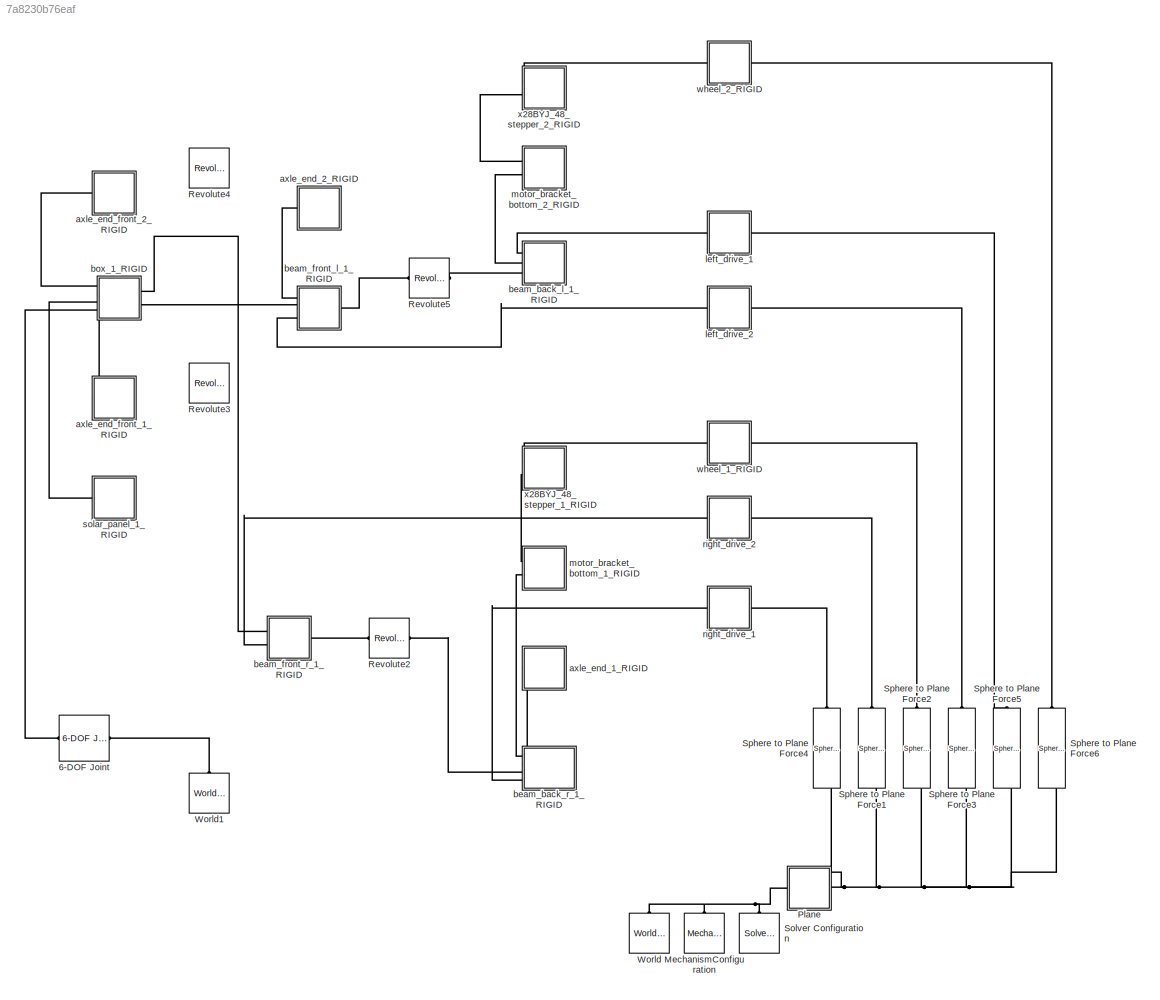
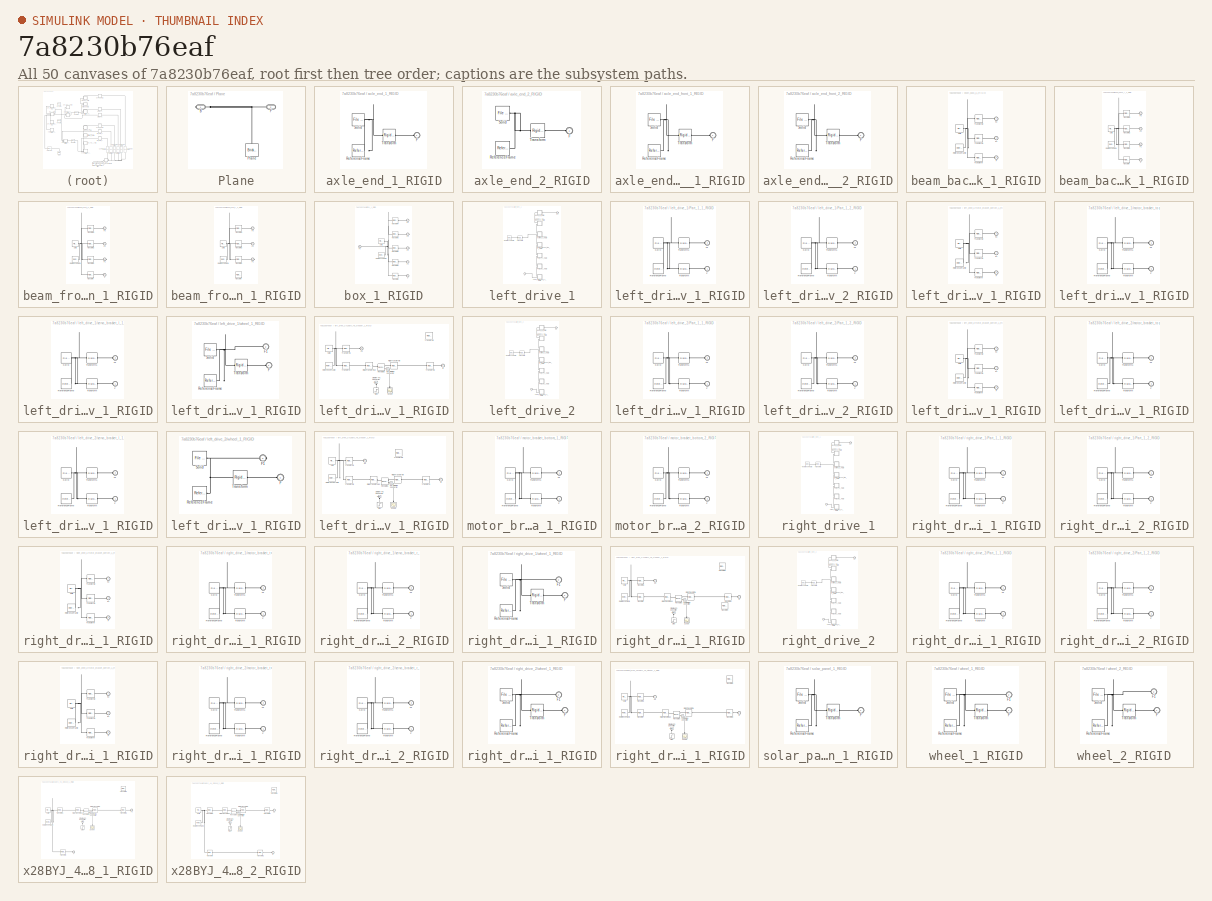
[diagram: thumbnail index - all 50 canvases of the model, root first then tree order]
MODEL slx_7a8230b76eaf
KIND model
CONFIG AbsTol = auto
CONFIG EnableMultiTasking = off
CONFIG FixedStep = auto
CONFIG MaxStep = .01
CONFIG MinStep = auto
CONFIG RelTol = 1e-4
CONFIG SampleTimeConstraint = Unconstrained
CONFIG SolverName = ode23t
CONFIG StartTime = 0.0
CONFIG StopTime = 10.0
WORKSPACE source: external: MATLAB File  (data not in archive)
BLOCK [Reference] 6-DOF Joint  REF=sm_lib/Joints/6-DOF Joint
  NameLocation = top
  Ports = [0, 0, 0, 0, 0, 1, 1]
  SourceBlock = sm_lib/Joints/6-DOF Joint
  SourceProductBaseCode = MS
  SourceType = 6-DOF Joint
BLOCK [Reference] MechanismConfiguration  REF=sm_lib/Utilities/Mechanism
Configuration
  NameLocation = right
  Ports = [0, 0, 0, 0, 0, 0, 1]
  SourceBlock = sm_lib/Utilities/Mechanism\nConfiguration
  SourceProductBaseCode = MS
  SourceType = Mechanism\nConfiguration
BLOCK [SubSystem] Plane
  Ports = [0, 0, 0, 0, 0, 1, 1]
  RequestExecContextInheritance = off
  Tag = CustomStyle
BLOCK [PMIOPort] Plane/B
  NameLocation = top
  Side = Right
BLOCK [PMIOPort] Plane/F
  NameLocation = top
  Port = 2
  Side = Left
BLOCK [Reference] Plane/Plane  REF=sm_lib/Body Elements/Brick Solid
  NameLocation = right
  Ports = [0, 0, 0, 0, 0, 0, 1]
  SourceBlock = sm_lib/Body Elements/Brick Solid
  SourceProductBaseCode = MS
  SourceType = Brick Solid
BLOCK [Reference] Revolute2  REF=sm_lib/Joints/Revolute Joint
  Ports = [0, 0, 0, 0, 0, 1, 1]
  SourceBlock = sm_lib/Joints/Revolute Joint
  SourceProductBaseCode = MS
  SourceType = Revolute Joint
BLOCK [Reference] Revolute3  REF=sm_lib/Joints/Revolute Joint
  Ports = [0, 0, 0, 0, 0, 1, 1]
  SourceBlock = sm_lib/Joints/Revolute Joint
  SourceProductBaseCode = MS
  SourceType = Revolute Joint
BLOCK [Reference] Revolute4  REF=sm_lib/Joints/Revolute Joint
  Ports = [0, 0, 0, 0, 0, 1, 1]
  SourceBlock = sm_lib/Joints/Revolute Joint
  SourceProductBaseCode = MS
  SourceType = Revolute Joint
BLOCK [Reference] Revolute5  REF=sm_lib/Joints/Revolute Joint
  Ports = [0, 0, 0, 0, 0, 1, 1]
  SourceBlock = sm_lib/Joints/Revolute Joint
  SourceProductBaseCode = MS
  SourceType = Revolute Joint
BLOCK [Reference] Solver Configuration  REF=nesl_utility/Solver
Configuration
  NameLocation = right
  Ports = [0, 0, 0, 0, 0, 0, 1]
  SourceBlock = nesl_utility/Solver\nConfiguration
  SourceProductBaseCode = SS
  SourceType = Solver\nConfiguration
BLOCK [Reference] Sphere to Plane Force1  REF=Contact_Forces_Lib/3D/Sphere to Plane Force
  NameLocation = right
  Ports = [0, 1, 0, 0, 0, 1, 1]
  SourceBlock = Contact_Forces_Lib/3D/Sphere to Plane Force
  SourceProductName = Simscape Multibody Contact Forces Library
  SourceType = Sphere to Plane Force
BLOCK [Reference] Sphere to Plane Force2  REF=Contact_Forces_Lib/3D/Sphere to Plane Force
  NameLocation = right
  Ports = [0, 1, 0, 0, 0, 1, 1]
  SourceBlock = Contact_Forces_Lib/3D/Sphere to Plane Force
  SourceProductName = Simscape Multibody Contact Forces Library
  SourceType = Sphere to Plane Force
BLOCK [Reference] Sphere to Plane Force3  REF=Contact_Forces_Lib/3D/Sphere to Plane Force
  NameLocation = right
  Ports = [0, 1, 0, 0, 0, 1, 1]
  SourceBlock = Contact_Forces_Lib/3D/Sphere to Plane Force
  SourceProductName = Simscape Multibody Contact Forces Library
  SourceType = Sphere to Plane Force
BLOCK [Reference] Sphere to Plane Force4  REF=Contact_Forces_Lib/3D/Sphere to Plane Force
  NameLocation = right
  Ports = [0, 1, 0, 0, 0, 1, 1]
  SourceBlock = Contact_Forces_Lib/3D/Sphere to Plane Force
  SourceProductName = Simscape Multibody Contact Forces Library
  SourceType = Sphere to Plane Force
BLOCK [Reference] Sphere to Plane Force5  REF=Contact_Forces_Lib/3D/Sphere to Plane Force
  NameLocation = right
  Ports = [0, 1, 0, 0, 0, 1, 1]
  SourceBlock = Contact_Forces_Lib/3D/Sphere to Plane Force
  SourceProductName = Simscape Multibody Contact Forces Library
  SourceType = Sphere to Plane Force
BLOCK [Reference] Sphere to Plane Force6  REF=Contact_Forces_Lib/3D/Sphere to Plane Force
  NameLocation = right
  Ports = [0, 1, 0, 0, 0, 1, 1]
  SourceBlock = Contact_Forces_Lib/3D/Sphere to Plane Force
  SourceProductName = Simscape Multibody Contact Forces Library
  SourceType = Sphere to Plane Force
BLOCK [Reference] World  REF=sm_lib/Frames and
Transforms/World Frame
  NameLocation = right
  Ports = [0, 0, 0, 0, 0, 0, 1]
  SourceBlock = sm_lib/Frames and\nTransforms/World Frame
  SourceProductBaseCode = MS
  SourceType = World Frame
BLOCK [Reference] World1  REF=sm_lib/Frames and
Transforms/World Frame
  NameLocation = right
  Ports = [0, 0, 0, 0, 0, 0, 1]
  SourceBlock = sm_lib/Frames and\nTransforms/World Frame
  SourceProductBaseCode = MS
  SourceType = World Frame
BLOCK [SubSystem] axle_end_1_RIGID
  Ports = [0, 0, 0, 0, 0, 1]
  RequestExecContextInheritance = off
BLOCK [PMIOPort] axle_end_1_RIGID/F
  Side = Left
BLOCK [Reference] axle_end_1_RIGID/ReferenceFrame  REF=sm_lib/Frames and
Transforms/Reference
Frame
  Ports = [0, 0, 0, 0, 0, 0, 1]
  SourceBlock = sm_lib/Frames and\nTransforms/Reference\nFrame
  SourceProductBaseCode = MS
  SourceType = Reference\nFrame
BLOCK [Reference] axle_end_1_RIGID/Solid  REF=sm_lib/Body Elements/File Solid
  Ports = [0, 0, 0, 0, 0, 0, 1]
  SourceBlock = sm_lib/Body Elements/File Solid
  SourceProductBaseCode = MS
  SourceType = File Solid
BLOCK [Reference] axle_end_1_RIGID/Transform  REF=sm_lib/Frames and
Transforms/Rigid
Transform
  Ports = [0, 0, 0, 0, 0, 1, 1]
  SourceBlock = sm_lib/Frames and\nTransforms/Rigid\nTransform
  SourceProductBaseCode = MS
  SourceType = Rigid\nTransform
BLOCK [SubSystem] axle_end_2_RIGID
  Ports = [0, 0, 0, 0, 0, 1]
  RequestExecContextInheritance = off
BLOCK [PMIOPort] axle_end_2_RIGID/F
  Side = Left
BLOCK [Reference] axle_end_2_RIGID/ReferenceFrame  REF=sm_lib/Frames and
Transforms/Reference
Frame
  Ports = [0, 0, 0, 0, 0, 0, 1]
  SourceBlock = sm_lib/Frames and\nTransforms/Reference\nFrame
  SourceProductBaseCode = MS
  SourceType = Reference\nFrame
BLOCK [Reference] axle_end_2_RIGID/Solid  REF=sm_lib/Body Elements/File Solid
  Ports = [0, 0, 0, 0, 0, 0, 1]
  SourceBlock = sm_lib/Body Elements/File Solid
  SourceProductBaseCode = MS
  SourceType = File Solid
BLOCK [Reference] axle_end_2_RIGID/Transform  REF=sm_lib/Frames and
Transforms/Rigid
Transform
  Ports = [0, 0, 0, 0, 0, 1, 1]
  SourceBlock = sm_lib/Frames and\nTransforms/Rigid\nTransform
  SourceProductBaseCode = MS
  SourceType = Rigid\nTransform
BLOCK [SubSystem] axle_end_front_1_RIGID
  Ports = [0, 0, 0, 0, 0, 1]
  RequestExecContextInheritance = off
BLOCK [PMIOPort] axle_end_front_1_RIGID/F
  Side = Left
BLOCK [Reference] axle_end_front_1_RIGID/ReferenceFrame  REF=sm_lib/Frames and
Transforms/Reference
Frame
  Ports = [0, 0, 0, 0, 0, 0, 1]
  SourceBlock = sm_lib/Frames and\nTransforms/Reference\nFrame
  SourceProductBaseCode = MS
  SourceType = Reference\nFrame
BLOCK [Reference] axle_end_front_1_RIGID/Solid  REF=sm_lib/Body Elements/File Solid
  Ports = [0, 0, 0, 0, 0, 0, 1]
  SourceBlock = sm_lib/Body Elements/File Solid
  SourceProductBaseCode = MS
  SourceType = File Solid
BLOCK [Reference] axle_end_front_1_RIGID/Transform  REF=sm_lib/Frames and
Transforms/Rigid
Transform
  Ports = [0, 0, 0, 0, 0, 1, 1]
  SourceBlock = sm_lib/Frames and\nTransforms/Rigid\nTransform
  SourceProductBaseCode = MS
  SourceType = Rigid\nTransform
BLOCK [SubSystem] axle_end_front_2_RIGID
  Ports = [0, 0, 0, 0, 0, 1]
  RequestExecContextInheritance = off
BLOCK [PMIOPort] axle_end_front_2_RIGID/F
  Side = Left
BLOCK [Reference] axle_end_front_2_RIGID/ReferenceFrame  REF=sm_lib/Frames and
Transforms/Reference
Frame
  Ports = [0, 0, 0, 0, 0, 0, 1]
  SourceBlock = sm_lib/Frames and\nTransforms/Reference\nFrame
  SourceProductBaseCode = MS
  SourceType = Reference\nFrame
BLOCK [Reference] axle_end_front_2_RIGID/Solid  REF=sm_lib/Body Elements/File Solid
  Ports = [0, 0, 0, 0, 0, 0, 1]
  SourceBlock = sm_lib/Body Elements/File Solid
  SourceProductBaseCode = MS
  SourceType = File Solid
BLOCK [Reference] axle_end_front_2_RIGID/Transform  REF=sm_lib/Frames and
Transforms/Rigid
Transform
  Ports = [0, 0, 0, 0, 0, 1, 1]
  SourceBlock = sm_lib/Frames and\nTransforms/Rigid\nTransform
  SourceProductBaseCode = MS
  SourceType = Rigid\nTransform
BLOCK [SubSystem] beam_back_l_1_RIGID
  Ports = [0, 0, 0, 0, 0, 3]
  RequestExecContextInheritance = off
BLOCK [PMIOPort] beam_back_l_1_RIGID/F
  Port = 2
  Side = Left
BLOCK [PMIOPort] beam_back_l_1_RIGID/F1
  Port = 3
  Side = Left
BLOCK [PMIOPort] beam_back_l_1_RIGID/F2
  Side = Left
BLOCK [Reference] beam_back_l_1_RIGID/ReferenceFrame  REF=sm_lib/Frames and
Transforms/Reference
Frame
  Ports = [0, 0, 0, 0, 0, 0, 1]
  SourceBlock = sm_lib/Frames and\nTransforms/Reference\nFrame
  SourceProductBaseCode = MS
  SourceType = Reference\nFrame
BLOCK [Reference] beam_back_l_1_RIGID/Solid  REF=sm_lib/Body Elements/File Solid
  Ports = [0, 0, 0, 0, 0, 0, 1]
  SourceBlock = sm_lib/Body Elements/File Solid
  SourceProductBaseCode = MS
  SourceType = File Solid
BLOCK [Reference] beam_back_l_1_RIGID/Transform  REF=sm_lib/Frames and
Transforms/Rigid
Transform
  Ports = [0, 0, 0, 0, 0, 1, 1]
  SourceBlock = sm_lib/Frames and\nTransforms/Rigid\nTransform
  SourceProductBaseCode = MS
  SourceType = Rigid\nTransform
BLOCK [Reference] beam_back_l_1_RIGID/Transform1  REF=sm_lib/Frames and
Transforms/Rigid
Transform
  Ports = [0, 0, 0, 0, 0, 1, 1]
  SourceBlock = sm_lib/Frames and\nTransforms/Rigid\nTransform
  SourceProductBaseCode = MS
  SourceType = Rigid\nTransform
BLOCK [Reference] beam_back_l_1_RIGID/Transform2  REF=sm_lib/Frames and
Transforms/Rigid
Transform
  Ports = [0, 0, 0, 0, 0, 1, 1]
  SourceBlock = sm_lib/Frames and\nTransforms/Rigid\nTransform
  SourceProductBaseCode = MS
  SourceType = Rigid\nTransform
BLOCK [SubSystem] beam_back_r_1_RIGID
  Ports = [0, 0, 0, 0, 0, 4]
  RequestExecContextInheritance = off
BLOCK [PMIOPort] beam_back_r_1_RIGID/F
  Port = 4
  Side = Left
BLOCK [PMIOPort] beam_back_r_1_RIGID/F1
  Side = Left
BLOCK [PMIOPort] beam_back_r_1_RIGID/F2
  Port = 2
  Side = Left
BLOCK [PMIOPort] beam_back_r_1_RIGID/F3
  Port = 3
  Side = Left
BLOCK [Reference] beam_back_r_1_RIGID/ReferenceFrame  REF=sm_lib/Frames and
Transforms/Reference
Frame
  Ports = [0, 0, 0, 0, 0, 0, 1]
  SourceBlock = sm_lib/Frames and\nTransforms/Reference\nFrame
  SourceProductBaseCode = MS
  SourceType = Reference\nFrame
BLOCK [Reference] beam_back_r_1_RIGID/Solid  REF=sm_lib/Body Elements/File Solid
  Ports = [0, 0, 0, 0, 0, 0, 1]
  SourceBlock = sm_lib/Body Elements/File Solid
  SourceProductBaseCode = MS
  SourceType = File Solid
BLOCK [Reference] beam_back_r_1_RIGID/Transform  REF=sm_lib/Frames and
Transforms/Rigid
Transform
  Ports = [0, 0, 0, 0, 0, 1, 1]
  SourceBlock = sm_lib/Frames and\nTransforms/Rigid\nTransform
  SourceProductBaseCode = MS
  SourceType = Rigid\nTransform
BLOCK [Reference] beam_back_r_1_RIGID/Transform1  REF=sm_lib/Frames and
Transforms/Rigid
Transform
  Ports = [0, 0, 0, 0, 0, 1, 1]
  SourceBlock = sm_lib/Frames and\nTransforms/Rigid\nTransform
  SourceProductBaseCode = MS
  SourceType = Rigid\nTransform
BLOCK [Reference] beam_back_r_1_RIGID/Transform2  REF=sm_lib/Frames and
Transforms/Rigid
Transform
  Ports = [0, 0, 0, 0, 0, 1, 1]
  SourceBlock = sm_lib/Frames and\nTransforms/Rigid\nTransform
  SourceProductBaseCode = MS
  SourceType = Rigid\nTransform
BLOCK [Reference] beam_back_r_1_RIGID/Transform3  REF=sm_lib/Frames and
Transforms/Rigid
Transform
  Ports = [0, 0, 0, 0, 0, 1, 1]
  SourceBlock = sm_lib/Frames and\nTransforms/Rigid\nTransform
  SourceProductBaseCode = MS
  SourceType = Rigid\nTransform
BLOCK [SubSystem] beam_front_l_1_RIGID
  Ports = [0, 0, 0, 0, 0, 3, 1]
  RequestExecContextInheritance = off
BLOCK [PMIOPort] beam_front_l_1_RIGID/F
  Port = 3
  Side = Left
BLOCK [PMIOPort] beam_front_l_1_RIGID/F1
  Port = 4
  Side = Right
BLOCK [PMIOPort] beam_front_l_1_RIGID/F2
  Side = Left
BLOCK [PMIOPort] beam_front_l_1_RIGID/F3
  Port = 2
  Side = Left
BLOCK [Reference] beam_front_l_1_RIGID/ReferenceFrame  REF=sm_lib/Frames and
Transforms/Reference
Frame
  Ports = [0, 0, 0, 0, 0, 0, 1]
  SourceBlock = sm_lib/Frames and\nTransforms/Reference\nFrame
  SourceProductBaseCode = MS
  SourceType = Reference\nFrame
BLOCK [Reference] beam_front_l_1_RIGID/Solid  REF=sm_lib/Body Elements/File Solid
  Ports = [0, 0, 0, 0, 0, 0, 1]
  SourceBlock = sm_lib/Body Elements/File Solid
  SourceProductBaseCode = MS
  SourceType = File Solid
BLOCK [Reference] beam_front_l_1_RIGID/Transform  REF=sm_lib/Frames and
Transforms/Rigid
Transform
  Ports = [0, 0, 0, 0, 0, 1, 1]
  SourceBlock = sm_lib/Frames and\nTransforms/Rigid\nTransform
  SourceProductBaseCode = MS
  SourceType = Rigid\nTransform
BLOCK [Reference] beam_front_l_1_RIGID/Transform1  REF=sm_lib/Frames and
Transforms/Rigid
Transform
  Ports = [0, 0, 0, 0, 0, 1, 1]
  SourceBlock = sm_lib/Frames and\nTransforms/Rigid\nTransform
  SourceProductBaseCode = MS
  SourceType = Rigid\nTransform
BLOCK [Reference] beam_front_l_1_RIGID/Transform2  REF=sm_lib/Frames and
Transforms/Rigid
Transform
  Ports = [0, 0, 0, 0, 0, 1, 1]
  SourceBlock = sm_lib/Frames and\nTransforms/Rigid\nTransform
  SourceProductBaseCode = MS
  SourceType = Rigid\nTransform
BLOCK [Reference] beam_front_l_1_RIGID/Transform3  REF=sm_lib/Frames and
Transforms/Rigid
Transform
  Ports = [0, 0, 0, 0, 0, 1, 1]
  SourceBlock = sm_lib/Frames and\nTransforms/Rigid\nTransform
  SourceProductBaseCode = MS
  SourceType = Rigid\nTransform
BLOCK [SubSystem] beam_front_r_1_RIGID
  Ports = [0, 0, 0, 0, 0, 2, 1]
  RequestExecContextInheritance = off
BLOCK [PMIOPort] beam_front_r_1_RIGID/F1
  Port = 3
  Side = Right
BLOCK [PMIOPort] beam_front_r_1_RIGID/F2
  Port = 2
  Side = Left
BLOCK [PMIOPort] beam_front_r_1_RIGID/F3
  Side = Left
BLOCK [Reference] beam_front_r_1_RIGID/ReferenceFrame  REF=sm_lib/Frames and
Transforms/Reference
Frame
  Ports = [0, 0, 0, 0, 0, 0, 1]
  SourceBlock = sm_lib/Frames and\nTransforms/Reference\nFrame
  SourceProductBaseCode = MS
  SourceType = Reference\nFrame
BLOCK [Reference] beam_front_r_1_RIGID/Solid  REF=sm_lib/Body Elements/File Solid
  Ports = [0, 0, 0, 0, 0, 0, 1]
  SourceBlock = sm_lib/Body Elements/File Solid
  SourceProductBaseCode = MS
  SourceType = File Solid
BLOCK [Reference] beam_front_r_1_RIGID/Transform  REF=sm_lib/Frames and
Transforms/Rigid
Transform
  Ports = [0, 0, 0, 0, 0, 1, 1]
  SourceBlock = sm_lib/Frames and\nTransforms/Rigid\nTransform
  SourceProductBaseCode = MS
  SourceType = Rigid\nTransform
BLOCK [Reference] beam_front_r_1_RIGID/Transform1  REF=sm_lib/Frames and
Transforms/Rigid
Transform
  Ports = [0, 0, 0, 0, 0, 1, 1]
  SourceBlock = sm_lib/Frames and\nTransforms/Rigid\nTransform
  SourceProductBaseCode = MS
  SourceType = Rigid\nTransform
BLOCK [Reference] beam_front_r_1_RIGID/Transform2  REF=sm_lib/Frames and
Transforms/Rigid
Transform
  Ports = [0, 0, 0, 0, 0, 1, 1]
  SourceBlock = sm_lib/Frames and\nTransforms/Rigid\nTransform
  SourceProductBaseCode = MS
  SourceType = Rigid\nTransform
BLOCK [Reference] beam_front_r_1_RIGID/Transform3  REF=sm_lib/Frames and
Transforms/Rigid
Transform
  Ports = [0, 0, 0, 0, 0, 1, 1]
  SourceBlock = sm_lib/Frames and\nTransforms/Rigid\nTransform
  SourceProductBaseCode = MS
  SourceType = Rigid\nTransform
BLOCK [SubSystem] box_1_RIGID
  Ports = [0, 0, 0, 0, 0, 4, 2]
  RequestExecContextInheritance = off
BLOCK [PMIOPort] box_1_RIGID/F
  Port = 3
  Side = Left
BLOCK [PMIOPort] box_1_RIGID/F1
  Port = 2
  Side = Left
BLOCK [PMIOPort] box_1_RIGID/F2
  Port = 5
  Side = Right
BLOCK [PMIOPort] box_1_RIGID/F3
  Port = 4
  Side = Right
BLOCK [PMIOPort] box_1_RIGID/F4
  Side = Left
BLOCK [PMIOPort] box_1_RIGID/F5
  Port = 6
  Side = Left
BLOCK [Reference] box_1_RIGID/ReferenceFrame  REF=sm_lib/Frames and
Transforms/Reference
Frame
  Ports = [0, 0, 0, 0, 0, 0, 1]
  SourceBlock = sm_lib/Frames and\nTransforms/Reference\nFrame
  SourceProductBaseCode = MS
  SourceType = Reference\nFrame
BLOCK [Reference] box_1_RIGID/Solid  REF=sm_lib/Body Elements/File Solid
  Ports = [0, 0, 0, 0, 0, 0, 1]
  SourceBlock = sm_lib/Body Elements/File Solid
  SourceProductBaseCode = MS
  SourceType = File Solid
BLOCK [Reference] box_1_RIGID/Transform  REF=sm_lib/Frames and
Transforms/Rigid
Transform
  Ports = [0, 0, 0, 0, 0, 1, 1]
  SourceBlock = sm_lib/Frames and\nTransforms/Rigid\nTransform
  SourceProductBaseCode = MS
  SourceType = Rigid\nTransform
BLOCK [Reference] box_1_RIGID/Transform1  REF=sm_lib/Frames and
Transforms/Rigid
Transform
  Ports = [0, 0, 0, 0, 0, 1, 1]
  SourceBlock = sm_lib/Frames and\nTransforms/Rigid\nTransform
  SourceProductBaseCode = MS
  SourceType = Rigid\nTransform
BLOCK [Reference] box_1_RIGID/Transform2  REF=sm_lib/Frames and
Transforms/Rigid
Transform
  Ports = [0, 0, 0, 0, 0, 1, 1]
  SourceBlock = sm_lib/Frames and\nTransforms/Rigid\nTransform
  SourceProductBaseCode = MS
  SourceType = Rigid\nTransform
BLOCK [Reference] box_1_RIGID/Transform3  REF=sm_lib/Frames and
Transforms/Rigid
Transform
  Ports = [0, 0, 0, 0, 0, 1, 1]
  SourceBlock = sm_lib/Frames and\nTransforms/Rigid\nTransform
  SourceProductBaseCode = MS
  SourceType = Rigid\nTransform
BLOCK [Reference] box_1_RIGID/Transform4  REF=sm_lib/Frames and
Transforms/Rigid
Transform
  Ports = [0, 0, 0, 0, 0, 1, 1]
  SourceBlock = sm_lib/Frames and\nTransforms/Rigid\nTransform
  SourceProductBaseCode = MS
  SourceType = Rigid\nTransform
BLOCK [SubSystem] left_drive_1
  Ports = [0, 0, 0, 0, 0, 1, 1]
  RequestExecContextInheritance = off
BLOCK [PMIOPort] left_drive_1/F
  Side = Left
BLOCK [PMIOPort] left_drive_1/F1
  NameLocation = top
  Port = 2
  Side = Right
BLOCK [SubSystem] left_drive_1/Part_1_1_RIGID
  Ports = [0, 0, 0, 0, 0, 2]
  RequestExecContextInheritance = off
BLOCK [PMIOPort] left_drive_1/Part_1_1_RIGID/F
  Side = Left
BLOCK [PMIOPort] left_drive_1/Part_1_1_RIGID/F1
  Port = 2
  Side = Left
BLOCK [Reference] left_drive_1/Part_1_1_RIGID/ReferenceFrame  REF=sm_lib/Frames and
Transforms/Reference
Frame
  Ports = [0, 0, 0, 0, 0, 0, 1]
  SourceBlock = sm_lib/Frames and\nTransforms/Reference\nFrame
  SourceProductBaseCode = MS
  SourceType = Reference\nFrame
BLOCK [Reference] left_drive_1/Part_1_1_RIGID/Solid  REF=sm_lib/Body Elements/File Solid
  Ports = [0, 0, 0, 0, 0, 0, 1]
  SourceBlock = sm_lib/Body Elements/File Solid
  SourceProductBaseCode = MS
  SourceType = File Solid
BLOCK [Reference] left_drive_1/Part_1_1_RIGID/Transform  REF=sm_lib/Frames and
Transforms/Rigid
Transform
  Ports = [0, 0, 0, 0, 0, 1, 1]
  SourceBlock = sm_lib/Frames and\nTransforms/Rigid\nTransform
  SourceProductBaseCode = MS
  SourceType = Rigid\nTransform
BLOCK [Reference] left_drive_1/Part_1_1_RIGID/Transform1  REF=sm_lib/Frames and
Transforms/Rigid
Transform
  Ports = [0, 0, 0, 0, 0, 1, 1]
  SourceBlock = sm_lib/Frames and\nTransforms/Rigid\nTransform
  SourceProductBaseCode = MS
  SourceType = Rigid\nTransform
BLOCK [SubSystem] left_drive_1/Part_1_2_RIGID
  Ports = [0, 0, 0, 0, 0, 2]
  RequestExecContextInheritance = off
BLOCK [PMIOPort] left_drive_1/Part_1_2_RIGID/F
  Side = Left
BLOCK [PMIOPort] left_drive_1/Part_1_2_RIGID/F1
  Port = 2
  Side = Left
BLOCK [Reference] left_drive_1/Part_1_2_RIGID/ReferenceFrame  REF=sm_lib/Frames and
Transforms/Reference
Frame
  Ports = [0, 0, 0, 0, 0, 0, 1]
  SourceBlock = sm_lib/Frames and\nTransforms/Reference\nFrame
  SourceProductBaseCode = MS
  SourceType = Reference\nFrame
BLOCK [Reference] left_drive_1/Part_1_2_RIGID/Solid  REF=sm_lib/Body Elements/File Solid
  Ports = [0, 0, 0, 0, 0, 0, 1]
  SourceBlock = sm_lib/Body Elements/File Solid
  SourceProductBaseCode = MS
  SourceType = File Solid
BLOCK [Reference] left_drive_1/Part_1_2_RIGID/Transform  REF=sm_lib/Frames and
Transforms/Rigid
Transform
  Ports = [0, 0, 0, 0, 0, 1, 1]
  SourceBlock = sm_lib/Frames and\nTransforms/Rigid\nTransform
  SourceProductBaseCode = MS
  SourceType = Rigid\nTransform
BLOCK [Reference] left_drive_1/Part_1_2_RIGID/Transform1  REF=sm_lib/Frames and
Transforms/Rigid
Transform
  Ports = [0, 0, 0, 0, 0, 1, 1]
  SourceBlock = sm_lib/Frames and\nTransforms/Rigid\nTransform
  SourceProductBaseCode = MS
  SourceType = Rigid\nTransform
BLOCK [Reference] left_drive_1/ReferenceFrame  REF=sm_lib/Frames and
Transforms/Reference
Frame
  Ports = [0, 0, 0, 0, 0, 0, 1]
  SourceBlock = sm_lib/Frames and\nTransforms/Reference\nFrame
  SourceProductBaseCode = MS
  SourceType = Reference\nFrame
BLOCK [Reference] left_drive_1/Transform  REF=sm_lib/Frames and
Transforms/Rigid
Transform
  Ports = [0, 0, 0, 0, 0, 1, 1]
  SourceBlock = sm_lib/Frames and\nTransforms/Rigid\nTransform
  SourceProductBaseCode = MS
  SourceType = Rigid\nTransform
BLOCK [SubSystem] left_drive_1/motor_bracket_bottom_1_RIGID
  Ports = [0, 0, 0, 0, 0, 3]
  RequestExecContextInheritance = off
BLOCK [PMIOPort] left_drive_1/motor_bracket_bottom_1_RIGID/F
  Port = 2
  Side = Left
BLOCK [PMIOPort] left_drive_1/motor_bracket_bottom_1_RIGID/F1
  Side = Left
BLOCK [PMIOPort] left_drive_1/motor_bracket_bottom_1_RIGID/F2
  Port = 3
  Side = Left
BLOCK [Reference] left_drive_1/motor_bracket_bottom_1_RIGID/ReferenceFrame  REF=sm_lib/Frames and
Transforms/Reference
Frame
  Ports = [0, 0, 0, 0, 0, 0, 1]
  SourceBlock = sm_lib/Frames and\nTransforms/Reference\nFrame
  SourceProductBaseCode = MS
  SourceType = Reference\nFrame
BLOCK [Reference] left_drive_1/motor_bracket_bottom_1_RIGID/Solid  REF=sm_lib/Body Elements/File Solid
  Ports = [0, 0, 0, 0, 0, 0, 1]
  SourceBlock = sm_lib/Body Elements/File Solid
  SourceProductBaseCode = MS
  SourceType = File Solid
BLOCK [Reference] left_drive_1/motor_bracket_bottom_1_RIGID/Transform  REF=sm_lib/Frames and
Transforms/Rigid
Transform
  Ports = [0, 0, 0, 0, 0, 1, 1]
  SourceBlock = sm_lib/Frames and\nTransforms/Rigid\nTransform
  SourceProductBaseCode = MS
  SourceType = Rigid\nTransform
BLOCK [Reference] left_drive_1/motor_bracket_bottom_1_RIGID/Transform1  REF=sm_lib/Frames and
Transforms/Rigid
Transform
  Ports = [0, 0, 0, 0, 0, 1, 1]
  SourceBlock = sm_lib/Frames and\nTransforms/Rigid\nTransform
  SourceProductBaseCode = MS
  SourceType = Rigid\nTransform
BLOCK [Reference] left_drive_1/motor_bracket_bottom_1_RIGID/Transform2  REF=sm_lib/Frames and
Transforms/Rigid
Transform
  Ports = [0, 0, 0, 0, 0, 1, 1]
  SourceBlock = sm_lib/Frames and\nTransforms/Rigid\nTransform
  SourceProductBaseCode = MS
  SourceType = Rigid\nTransform
BLOCK [SubSystem] left_drive_1/motor_bracket_top_1_RIGID
  Ports = [0, 0, 0, 0, 0, 2]
  RequestExecContextInheritance = off
BLOCK [PMIOPort] left_drive_1/motor_bracket_top_1_RIGID/F
  Port = 2
  Side = Left
BLOCK [PMIOPort] left_drive_1/motor_bracket_top_1_RIGID/F1
  Side = Left
BLOCK [Reference] left_drive_1/motor_bracket_top_1_RIGID/ReferenceFrame  REF=sm_lib/Frames and
Transforms/Reference
Frame
  Ports = [0, 0, 0, 0, 0, 0, 1]
  SourceBlock = sm_lib/Frames and\nTransforms/Reference\nFrame
  SourceProductBaseCode = MS
  SourceType = Reference\nFrame
BLOCK [Reference] left_drive_1/motor_bracket_top_1_RIGID/Solid  REF=sm_lib/Body Elements/File Solid
  Ports = [0, 0, 0, 0, 0, 0, 1]
  SourceBlock = sm_lib/Body Elements/File Solid
  SourceProductBaseCode = MS
  SourceType = File Solid
BLOCK [Reference] left_drive_1/motor_bracket_top_1_RIGID/Transform  REF=sm_lib/Frames and
Transforms/Rigid
Transform
  Ports = [0, 0, 0, 0, 0, 1, 1]
  SourceBlock = sm_lib/Frames and\nTransforms/Rigid\nTransform
  SourceProductBaseCode = MS
  SourceType = Rigid\nTransform
BLOCK [Reference] left_drive_1/motor_bracket_top_1_RIGID/Transform1  REF=sm_lib/Frames and
Transforms/Rigid
Transform
  Ports = [0, 0, 0, 0, 0, 1, 1]
  SourceBlock = sm_lib/Frames and\nTransforms/Rigid\nTransform
  SourceProductBaseCode = MS
  SourceType = Rigid\nTransform
BLOCK [SubSystem] left_drive_1/servo_bracket_l_1_RIGID
  Ports = [0, 0, 0, 0, 0, 2]
  RequestExecContextInheritance = off
BLOCK [PMIOPort] left_drive_1/servo_bracket_l_1_RIGID/F
  Side = Left
BLOCK [PMIOPort] left_drive_1/servo_bracket_l_1_RIGID/F1
  Port = 2
  Side = Left
BLOCK [Reference] left_drive_1/servo_bracket_l_1_RIGID/ReferenceFrame  REF=sm_lib/Frames and
Transforms/Reference
Frame
  Ports = [0, 0, 0, 0, 0, 0, 1]
  SourceBlock = sm_lib/Frames and\nTransforms/Reference\nFrame
  SourceProductBaseCode = MS
  SourceType = Reference\nFrame
BLOCK [Reference] left_drive_1/servo_bracket_l_1_RIGID/Solid  REF=sm_lib/Body Elements/File Solid
  Ports = [0, 0, 0, 0, 0, 0, 1]
  SourceBlock = sm_lib/Body Elements/File Solid
  SourceProductBaseCode = MS
  SourceType = File Solid
BLOCK [Reference] left_drive_1/servo_bracket_l_1_RIGID/Transform  REF=sm_lib/Frames and
Transforms/Rigid
Transform
  Ports = [0, 0, 0, 0, 0, 1, 1]
  SourceBlock = sm_lib/Frames and\nTransforms/Rigid\nTransform
  SourceProductBaseCode = MS
  SourceType = Rigid\nTransform
BLOCK [Reference] left_drive_1/servo_bracket_l_1_RIGID/Transform1  REF=sm_lib/Frames and
Transforms/Rigid
Transform
  Ports = [0, 0, 0, 0, 0, 1, 1]
  SourceBlock = sm_lib/Frames and\nTransforms/Rigid\nTransform
  SourceProductBaseCode = MS
  SourceType = Rigid\nTransform
BLOCK [SubSystem] left_drive_1/wheel_1_RIGID
  Ports = [0, 0, 0, 0, 0, 1, 1]
  RequestExecContextInheritance = off
BLOCK [PMIOPort] left_drive_1/wheel_1_RIGID/F
  Side = Left
BLOCK [PMIOPort] left_drive_1/wheel_1_RIGID/F1
  Port = 2
  Side = Right
BLOCK [Reference] left_drive_1/wheel_1_RIGID/ReferenceFrame  REF=sm_lib/Frames and
Transforms/Reference
Frame
  Ports = [0, 0, 0, 0, 0, 0, 1]
  SourceBlock = sm_lib/Frames and\nTransforms/Reference\nFrame
  SourceProductBaseCode = MS
  SourceType = Reference\nFrame
BLOCK [Reference] left_drive_1/wheel_1_RIGID/Solid  REF=sm_lib/Body Elements/File Solid
  Ports = [0, 0, 0, 0, 0, 0, 1]
  SourceBlock = sm_lib/Body Elements/File Solid
  SourceProductBaseCode = MS
  SourceType = File Solid
BLOCK [Reference] left_drive_1/wheel_1_RIGID/Transform  REF=sm_lib/Frames and
Transforms/Rigid
Transform
  Ports = [0, 0, 0, 0, 0, 1, 1]
  SourceBlock = sm_lib/Frames and\nTransforms/Rigid\nTransform
  SourceProductBaseCode = MS
  SourceType = Rigid\nTransform
BLOCK [SubSystem] left_drive_1/x28BYJ_48_stepper_1_RIGID
  Ports = [0, 0, 0, 0, 0, 2]
  RequestExecContextInheritance = off
BLOCK [PMIOPort] left_drive_1/x28BYJ_48_stepper_1_RIGID/F
  Side = Left
BLOCK [PMIOPort] left_drive_1/x28BYJ_48_stepper_1_RIGID/F1
  Port = 2
  Side = Left
BLOCK [Reference] left_drive_1/x28BYJ_48_stepper_1_RIGID/PS-Simulink Converter  REF=nesl_utility/PS-Simulink
Converter
  Ports = [0, 1, 0, 0, 0, 1]
  SourceBlock = nesl_utility/PS-Simulink\nConverter
  SourceProductBaseCode = SS
  SourceType = PS-Simulink\nConverter
BLOCK [Reference] left_drive_1/x28BYJ_48_stepper_1_RIGID/ReferenceFrame  REF=sm_lib/Frames and
Transforms/Reference
Frame
  Ports = [0, 0, 0, 0, 0, 0, 1]
  SourceBlock = sm_lib/Frames and\nTransforms/Reference\nFrame
  SourceProductBaseCode = MS
  SourceType = Reference\nFrame
BLOCK [Reference] left_drive_1/x28BYJ_48_stepper_1_RIGID/Revolute 5  REF=sm_lib/Joints/Revolute Joint
  Ports = [0, 0, 0, 0, 0, 2, 2]
  SourceBlock = sm_lib/Joints/Revolute Joint
  SourceProductBaseCode = MS
  SourceType = Revolute Joint
BLOCK [Reference] left_drive_1/x28BYJ_48_stepper_1_RIGID/Rigid Transform10  REF=sm_lib/Frames and
Transforms/Rigid
Transform
  Ports = [0, 0, 0, 0, 0, 1, 1]
  SourceBlock = sm_lib/Frames and\nTransforms/Rigid\nTransform
  SourceProductBaseCode = MS
  SourceType = Rigid\nTransform
BLOCK [Reference] left_drive_1/x28BYJ_48_stepper_1_RIGID/Rigid Transform9  REF=sm_lib/Frames and
Transforms/Rigid
Transform
  Ports = [0, 0, 0, 0, 0, 1, 1]
  SourceBlock = sm_lib/Frames and\nTransforms/Rigid\nTransform
  SourceProductBaseCode = MS
  SourceType = Rigid\nTransform
BLOCK [Scope] left_drive_1/x28BYJ_48_stepper_1_RIGID/Scope
  Floating = off
  NameLocation = left
  NumInputPorts = 1
  Ports = [1]
  ScopeSpecificationString = Simulink.scopes.TimeScopeBlockCfg('CurrentConfiguration', extmgr.ConfigurationSet(extmgr.Configuration('Core','General UI',true),extmgr.Configuration('Core','Source UI',true),extmgr.Configuration('Sources','WiredSimulink',true,'DataLoggingVariableName','ScopeData2'),extmgr.Configuration('Visuals','Time Domain',true,'SerializedDisplays',{struct('MinYLimReal','-30548.09722','MaxYLimReal','274932.875...<+1445ch>
BLOCK [Reference] left_drive_1/x28BYJ_48_stepper_1_RIGID/Simulink-PS Converter  REF=nesl_utility/Simulink-PS
Converter
  NameLocation = right
  Ports = [1, 0, 0, 0, 0, 0, 1]
  SourceBlock = nesl_utility/Simulink-PS\nConverter
  SourceProductBaseCode = SS
  SourceType = Simulink-PS\nConverter
BLOCK [Reference] left_drive_1/x28BYJ_48_stepper_1_RIGID/Solid  REF=sm_lib/Body Elements/File Solid
  Ports = [0, 0, 0, 0, 0, 0, 1]
  SourceBlock = sm_lib/Body Elements/File Solid
  SourceProductBaseCode = MS
  SourceType = File Solid
BLOCK [Step] left_drive_1/x28BYJ_48_stepper_1_RIGID/Step
  NameLocation = right
  SampleTime = 0
  Time = 5
BLOCK [Reference] left_drive_1/x28BYJ_48_stepper_1_RIGID/Transform  REF=sm_lib/Frames and
Transforms/Rigid
Transform
  Ports = [0, 0, 0, 0, 0, 1, 1]
  SourceBlock = sm_lib/Frames and\nTransforms/Rigid\nTransform
  SourceProductBaseCode = MS
  SourceType = Rigid\nTransform
BLOCK [Reference] left_drive_1/x28BYJ_48_stepper_1_RIGID/Transform1  REF=sm_lib/Frames and
Transforms/Rigid
Transform
  Ports = [0, 0, 0, 0, 0, 1, 1]
  SourceBlock = sm_lib/Frames and\nTransforms/Rigid\nTransform
  SourceProductBaseCode = MS
  SourceType = Rigid\nTransform
BLOCK [Reference] left_drive_1/x28BYJ_48_stepper_1_RIGID/Transform2  REF=sm_lib/Frames and
Transforms/Rigid
Transform
  Ports = [0, 0, 0, 0, 0, 1, 1]
  SourceBlock = sm_lib/Frames and\nTransforms/Rigid\nTransform
  SourceProductBaseCode = MS
  SourceType = Rigid\nTransform
BLOCK [Reference] left_drive_1/x28BYJ_48_stepper_1_RIGID/Transform3  REF=sm_lib/Frames and
Transforms/Rigid
Transform
  Ports = [0, 0, 0, 0, 0, 1, 1]
  SourceBlock = sm_lib/Frames and\nTransforms/Rigid\nTransform
  SourceProductBaseCode = MS
  SourceType = Rigid\nTransform
BLOCK [SubSystem] left_drive_2
  Ports = [0, 0, 0, 0, 0, 1, 1]
  RequestExecContextInheritance = off
BLOCK [PMIOPort] left_drive_2/F
  Side = Left
BLOCK [PMIOPort] left_drive_2/F1
  NameLocation = top
  Port = 2
  Side = Right
BLOCK [SubSystem] left_drive_2/Part_1_1_RIGID
  Ports = [0, 0, 0, 0, 0, 2]
  RequestExecContextInheritance = off
BLOCK [PMIOPort] left_drive_2/Part_1_1_RIGID/F
  Side = Left
BLOCK [PMIOPort] left_drive_2/Part_1_1_RIGID/F1
  Port = 2
  Side = Left
BLOCK [Reference] left_drive_2/Part_1_1_RIGID/ReferenceFrame  REF=sm_lib/Frames and
Transforms/Reference
Frame
  Ports = [0, 0, 0, 0, 0, 0, 1]
  SourceBlock = sm_lib/Frames and\nTransforms/Reference\nFrame
  SourceProductBaseCode = MS
  SourceType = Reference\nFrame
BLOCK [Reference] left_drive_2/Part_1_1_RIGID/Solid  REF=sm_lib/Body Elements/File Solid
  Ports = [0, 0, 0, 0, 0, 0, 1]
  SourceBlock = sm_lib/Body Elements/File Solid
  SourceProductBaseCode = MS
  SourceType = File Solid
BLOCK [Reference] left_drive_2/Part_1_1_RIGID/Transform  REF=sm_lib/Frames and
Transforms/Rigid
Transform
  Ports = [0, 0, 0, 0, 0, 1, 1]
  SourceBlock = sm_lib/Frames and\nTransforms/Rigid\nTransform
  SourceProductBaseCode = MS
  SourceType = Rigid\nTransform
BLOCK [Reference] left_drive_2/Part_1_1_RIGID/Transform1  REF=sm_lib/Frames and
Transforms/Rigid
Transform
  Ports = [0, 0, 0, 0, 0, 1, 1]
  SourceBlock = sm_lib/Frames and\nTransforms/Rigid\nTransform
  SourceProductBaseCode = MS
  SourceType = Rigid\nTransform
BLOCK [SubSystem] left_drive_2/Part_1_2_RIGID
  Ports = [0, 0, 0, 0, 0, 2]
  RequestExecContextInheritance = off
BLOCK [PMIOPort] left_drive_2/Part_1_2_RIGID/F
  Side = Left
BLOCK [PMIOPort] left_drive_2/Part_1_2_RIGID/F1
  Port = 2
  Side = Left
BLOCK [Reference] left_drive_2/Part_1_2_RIGID/ReferenceFrame  REF=sm_lib/Frames and
Transforms/Reference
Frame
  Ports = [0, 0, 0, 0, 0, 0, 1]
  SourceBlock = sm_lib/Frames and\nTransforms/Reference\nFrame
  SourceProductBaseCode = MS
  SourceType = Reference\nFrame
BLOCK [Reference] left_drive_2/Part_1_2_RIGID/Solid  REF=sm_lib/Body Elements/File Solid
  Ports = [0, 0, 0, 0, 0, 0, 1]
  SourceBlock = sm_lib/Body Elements/File Solid
  SourceProductBaseCode = MS
  SourceType = File Solid
BLOCK [Reference] left_drive_2/Part_1_2_RIGID/Transform  REF=sm_lib/Frames and
Transforms/Rigid
Transform
  Ports = [0, 0, 0, 0, 0, 1, 1]
  SourceBlock = sm_lib/Frames and\nTransforms/Rigid\nTransform
  SourceProductBaseCode = MS
  SourceType = Rigid\nTransform
BLOCK [Reference] left_drive_2/Part_1_2_RIGID/Transform1  REF=sm_lib/Frames and
Transforms/Rigid
Transform
  Ports = [0, 0, 0, 0, 0, 1, 1]
  SourceBlock = sm_lib/Frames and\nTransforms/Rigid\nTransform
  SourceProductBaseCode = MS
  SourceType = Rigid\nTransform
BLOCK [Reference] left_drive_2/ReferenceFrame  REF=sm_lib/Frames and
Transforms/Reference
Frame
  Ports = [0, 0, 0, 0, 0, 0, 1]
  SourceBlock = sm_lib/Frames and\nTransforms/Reference\nFrame
  SourceProductBaseCode = MS
  SourceType = Reference\nFrame
BLOCK [Reference] left_drive_2/Transform  REF=sm_lib/Frames and
Transforms/Rigid
Transform
  Ports = [0, 0, 0, 0, 0, 1, 1]
  SourceBlock = sm_lib/Frames and\nTransforms/Rigid\nTransform
  SourceProductBaseCode = MS
  SourceType = Rigid\nTransform
BLOCK [SubSystem] left_drive_2/motor_bracket_bottom_1_RIGID
  Ports = [0, 0, 0, 0, 0, 3]
  RequestExecContextInheritance = off
BLOCK [PMIOPort] left_drive_2/motor_bracket_bottom_1_RIGID/F
  Port = 2
  Side = Left
BLOCK [PMIOPort] left_drive_2/motor_bracket_bottom_1_RIGID/F1
  Side = Left
BLOCK [PMIOPort] left_drive_2/motor_bracket_bottom_1_RIGID/F2
  Port = 3
  Side = Left
BLOCK [Reference] left_drive_2/motor_bracket_bottom_1_RIGID/ReferenceFrame  REF=sm_lib/Frames and
Transforms/Reference
Frame
  Ports = [0, 0, 0, 0, 0, 0, 1]
  SourceBlock = sm_lib/Frames and\nTransforms/Reference\nFrame
  SourceProductBaseCode = MS
  SourceType = Reference\nFrame
BLOCK [Reference] left_drive_2/motor_bracket_bottom_1_RIGID/Solid  REF=sm_lib/Body Elements/File Solid
  Ports = [0, 0, 0, 0, 0, 0, 1]
  SourceBlock = sm_lib/Body Elements/File Solid
  SourceProductBaseCode = MS
  SourceType = File Solid
BLOCK [Reference] left_drive_2/motor_bracket_bottom_1_RIGID/Transform  REF=sm_lib/Frames and
Transforms/Rigid
Transform
  Ports = [0, 0, 0, 0, 0, 1, 1]
  SourceBlock = sm_lib/Frames and\nTransforms/Rigid\nTransform
  SourceProductBaseCode = MS
  SourceType = Rigid\nTransform
BLOCK [Reference] left_drive_2/motor_bracket_bottom_1_RIGID/Transform1  REF=sm_lib/Frames and
Transforms/Rigid
Transform
  Ports = [0, 0, 0, 0, 0, 1, 1]
  SourceBlock = sm_lib/Frames and\nTransforms/Rigid\nTransform
  SourceProductBaseCode = MS
  SourceType = Rigid\nTransform
BLOCK [Reference] left_drive_2/motor_bracket_bottom_1_RIGID/Transform2  REF=sm_lib/Frames and
Transforms/Rigid
Transform
  Ports = [0, 0, 0, 0, 0, 1, 1]
  SourceBlock = sm_lib/Frames and\nTransforms/Rigid\nTransform
  SourceProductBaseCode = MS
  SourceType = Rigid\nTransform
BLOCK [SubSystem] left_drive_2/motor_bracket_top_1_RIGID
  Ports = [0, 0, 0, 0, 0, 2]
  RequestExecContextInheritance = off
BLOCK [PMIOPort] left_drive_2/motor_bracket_top_1_RIGID/F
  Port = 2
  Side = Left
BLOCK [PMIOPort] left_drive_2/motor_bracket_top_1_RIGID/F1
  Side = Left
BLOCK [Reference] left_drive_2/motor_bracket_top_1_RIGID/ReferenceFrame  REF=sm_lib/Frames and
Transforms/Reference
Frame
  Ports = [0, 0, 0, 0, 0, 0, 1]
  SourceBlock = sm_lib/Frames and\nTransforms/Reference\nFrame
  SourceProductBaseCode = MS
  SourceType = Reference\nFrame
BLOCK [Reference] left_drive_2/motor_bracket_top_1_RIGID/Solid  REF=sm_lib/Body Elements/File Solid
  Ports = [0, 0, 0, 0, 0, 0, 1]
  SourceBlock = sm_lib/Body Elements/File Solid
  SourceProductBaseCode = MS
  SourceType = File Solid
BLOCK [Reference] left_drive_2/motor_bracket_top_1_RIGID/Transform  REF=sm_lib/Frames and
Transforms/Rigid
Transform
  Ports = [0, 0, 0, 0, 0, 1, 1]
  SourceBlock = sm_lib/Frames and\nTransforms/Rigid\nTransform
  SourceProductBaseCode = MS
  SourceType = Rigid\nTransform
BLOCK [Reference] left_drive_2/motor_bracket_top_1_RIGID/Transform1  REF=sm_lib/Frames and
Transforms/Rigid
Transform
  Ports = [0, 0, 0, 0, 0, 1, 1]
  SourceBlock = sm_lib/Frames and\nTransforms/Rigid\nTransform
  SourceProductBaseCode = MS
  SourceType = Rigid\nTransform
BLOCK [SubSystem] left_drive_2/servo_bracket_l_1_RIGID
  Ports = [0, 0, 0, 0, 0, 2]
  RequestExecContextInheritance = off
BLOCK [PMIOPort] left_drive_2/servo_bracket_l_1_RIGID/F
  Side = Left
BLOCK [PMIOPort] left_drive_2/servo_bracket_l_1_RIGID/F1
  Port = 2
  Side = Left
BLOCK [Reference] left_drive_2/servo_bracket_l_1_RIGID/ReferenceFrame  REF=sm_lib/Frames and
Transforms/Reference
Frame
  Ports = [0, 0, 0, 0, 0, 0, 1]
  SourceBlock = sm_lib/Frames and\nTransforms/Reference\nFrame
  SourceProductBaseCode = MS
  SourceType = Reference\nFrame
BLOCK [Reference] left_drive_2/servo_bracket_l_1_RIGID/Solid  REF=sm_lib/Body Elements/File Solid
  Ports = [0, 0, 0, 0, 0, 0, 1]
  SourceBlock = sm_lib/Body Elements/File Solid
  SourceProductBaseCode = MS
  SourceType = File Solid
BLOCK [Reference] left_drive_2/servo_bracket_l_1_RIGID/Transform  REF=sm_lib/Frames and
Transforms/Rigid
Transform
  Ports = [0, 0, 0, 0, 0, 1, 1]
  SourceBlock = sm_lib/Frames and\nTransforms/Rigid\nTransform
  SourceProductBaseCode = MS
  SourceType = Rigid\nTransform
BLOCK [Reference] left_drive_2/servo_bracket_l_1_RIGID/Transform1  REF=sm_lib/Frames and
Transforms/Rigid
Transform
  Ports = [0, 0, 0, 0, 0, 1, 1]
  SourceBlock = sm_lib/Frames and\nTransforms/Rigid\nTransform
  SourceProductBaseCode = MS
  SourceType = Rigid\nTransform
BLOCK [SubSystem] left_drive_2/wheel_1_RIGID
  Ports = [0, 0, 0, 0, 0, 1, 1]
  RequestExecContextInheritance = off
BLOCK [PMIOPort] left_drive_2/wheel_1_RIGID/F
  Side = Left
BLOCK [PMIOPort] left_drive_2/wheel_1_RIGID/F1
  Port = 2
  Side = Right
BLOCK [Reference] left_drive_2/wheel_1_RIGID/ReferenceFrame  REF=sm_lib/Frames and
Transforms/Reference
Frame
  Ports = [0, 0, 0, 0, 0, 0, 1]
  SourceBlock = sm_lib/Frames and\nTransforms/Reference\nFrame
  SourceProductBaseCode = MS
  SourceType = Reference\nFrame
BLOCK [Reference] left_drive_2/wheel_1_RIGID/Solid  REF=sm_lib/Body Elements/File Solid
  Ports = [0, 0, 0, 0, 0, 0, 1]
  SourceBlock = sm_lib/Body Elements/File Solid
  SourceProductBaseCode = MS
  SourceType = File Solid
BLOCK [Reference] left_drive_2/wheel_1_RIGID/Transform  REF=sm_lib/Frames and
Transforms/Rigid
Transform
  Ports = [0, 0, 0, 0, 0, 1, 1]
  SourceBlock = sm_lib/Frames and\nTransforms/Rigid\nTransform
  SourceProductBaseCode = MS
  SourceType = Rigid\nTransform
BLOCK [SubSystem] left_drive_2/x28BYJ_48_stepper_1_RIGID
  Ports = [0, 0, 0, 0, 0, 2]
  RequestExecContextInheritance = off
BLOCK [PMIOPort] left_drive_2/x28BYJ_48_stepper_1_RIGID/F
  Side = Left
BLOCK [PMIOPort] left_drive_2/x28BYJ_48_stepper_1_RIGID/F1
  Port = 2
  Side = Left
BLOCK [Reference] left_drive_2/x28BYJ_48_stepper_1_RIGID/PS-Simulink Converter  REF=nesl_utility/PS-Simulink
Converter
  Ports = [0, 1, 0, 0, 0, 1]
  SourceBlock = nesl_utility/PS-Simulink\nConverter
  SourceProductBaseCode = SS
  SourceType = PS-Simulink\nConverter
BLOCK [Reference] left_drive_2/x28BYJ_48_stepper_1_RIGID/ReferenceFrame  REF=sm_lib/Frames and
Transforms/Reference
Frame
  Ports = [0, 0, 0, 0, 0, 0, 1]
  SourceBlock = sm_lib/Frames and\nTransforms/Reference\nFrame
  SourceProductBaseCode = MS
  SourceType = Reference\nFrame
BLOCK [Reference] left_drive_2/x28BYJ_48_stepper_1_RIGID/Revolute 5  REF=sm_lib/Joints/Revolute Joint
  Ports = [0, 0, 0, 0, 0, 2, 2]
  SourceBlock = sm_lib/Joints/Revolute Joint
  SourceProductBaseCode = MS
  SourceType = Revolute Joint
BLOCK [Reference] left_drive_2/x28BYJ_48_stepper_1_RIGID/Rigid Transform10  REF=sm_lib/Frames and
Transforms/Rigid
Transform
  Ports = [0, 0, 0, 0, 0, 1, 1]
  SourceBlock = sm_lib/Frames and\nTransforms/Rigid\nTransform
  SourceProductBaseCode = MS
  SourceType = Rigid\nTransform
BLOCK [Reference] left_drive_2/x28BYJ_48_stepper_1_RIGID/Rigid Transform9  REF=sm_lib/Frames and
Transforms/Rigid
Transform
  Ports = [0, 0, 0, 0, 0, 1, 1]
  SourceBlock = sm_lib/Frames and\nTransforms/Rigid\nTransform
  SourceProductBaseCode = MS
  SourceType = Rigid\nTransform
BLOCK [Scope] left_drive_2/x28BYJ_48_stepper_1_RIGID/Scope
  Floating = off
  NameLocation = left
  NumInputPorts = 1
  Ports = [1]
  ScopeSpecificationString = Simulink.scopes.TimeScopeBlockCfg('CurrentConfiguration', extmgr.ConfigurationSet(extmgr.Configuration('Core','General UI',true),extmgr.Configuration('Core','Source UI',true),extmgr.Configuration('Sources','WiredSimulink',true),extmgr.Configuration('Visuals','Time Domain',true,'SerializedDisplays',{struct('MinYLimReal','0.56091504133272','MaxYLimReal','0.56091504133333','YLabelReal','','MinYLimMag...<+1442ch>
BLOCK [Reference] left_drive_2/x28BYJ_48_stepper_1_RIGID/Simulink-PS Converter  REF=nesl_utility/Simulink-PS
Converter
  NameLocation = right
  Ports = [1, 0, 0, 0, 0, 0, 1]
  SourceBlock = nesl_utility/Simulink-PS\nConverter
  SourceProductBaseCode = SS
  SourceType = Simulink-PS\nConverter
BLOCK [Reference] left_drive_2/x28BYJ_48_stepper_1_RIGID/Solid  REF=sm_lib/Body Elements/File Solid
  Ports = [0, 0, 0, 0, 0, 0, 1]
  SourceBlock = sm_lib/Body Elements/File Solid
  SourceProductBaseCode = MS
  SourceType = File Solid
BLOCK [Step] left_drive_2/x28BYJ_48_stepper_1_RIGID/Step
  NameLocation = right
  SampleTime = 0
  Time = 5
BLOCK [Reference] left_drive_2/x28BYJ_48_stepper_1_RIGID/Transform  REF=sm_lib/Frames and
Transforms/Rigid
Transform
  Ports = [0, 0, 0, 0, 0, 1, 1]
  SourceBlock = sm_lib/Frames and\nTransforms/Rigid\nTransform
  SourceProductBaseCode = MS
  SourceType = Rigid\nTransform
BLOCK [Reference] left_drive_2/x28BYJ_48_stepper_1_RIGID/Transform1  REF=sm_lib/Frames and
Transforms/Rigid
Transform
  Ports = [0, 0, 0, 0, 0, 1, 1]
  SourceBlock = sm_lib/Frames and\nTransforms/Rigid\nTransform
  SourceProductBaseCode = MS
  SourceType = Rigid\nTransform
BLOCK [Reference] left_drive_2/x28BYJ_48_stepper_1_RIGID/Transform2  REF=sm_lib/Frames and
Transforms/Rigid
Transform
  Ports = [0, 0, 0, 0, 0, 1, 1]
  SourceBlock = sm_lib/Frames and\nTransforms/Rigid\nTransform
  SourceProductBaseCode = MS
  SourceType = Rigid\nTransform
BLOCK [Reference] left_drive_2/x28BYJ_48_stepper_1_RIGID/Transform3  REF=sm_lib/Frames and
Transforms/Rigid
Transform
  Ports = [0, 0, 0, 0, 0, 1, 1]
  SourceBlock = sm_lib/Frames and\nTransforms/Rigid\nTransform
  SourceProductBaseCode = MS
  SourceType = Rigid\nTransform
BLOCK [SubSystem] motor_bracket_bottom_1_RIGID
  Ports = [0, 0, 0, 0, 0, 2]
  RequestExecContextInheritance = off
BLOCK [PMIOPort] motor_bracket_bottom_1_RIGID/F
  Port = 2
  Side = Left
BLOCK [PMIOPort] motor_bracket_bottom_1_RIGID/F1
  Side = Left
BLOCK [Reference] motor_bracket_bottom_1_RIGID/ReferenceFrame  REF=sm_lib/Frames and
Transforms/Reference
Frame
  Ports = [0, 0, 0, 0, 0, 0, 1]
  SourceBlock = sm_lib/Frames and\nTransforms/Reference\nFrame
  SourceProductBaseCode = MS
  SourceType = Reference\nFrame
BLOCK [Reference] motor_bracket_bottom_1_RIGID/Solid  REF=sm_lib/Body Elements/File Solid
  Ports = [0, 0, 0, 0, 0, 0, 1]
  SourceBlock = sm_lib/Body Elements/File Solid
  SourceProductBaseCode = MS
  SourceType = File Solid
BLOCK [Reference] motor_bracket_bottom_1_RIGID/Transform  REF=sm_lib/Frames and
Transforms/Rigid
Transform
  Ports = [0, 0, 0, 0, 0, 1, 1]
  SourceBlock = sm_lib/Frames and\nTransforms/Rigid\nTransform
  SourceProductBaseCode = MS
  SourceType = Rigid\nTransform
BLOCK [Reference] motor_bracket_bottom_1_RIGID/Transform1  REF=sm_lib/Frames and
Transforms/Rigid
Transform
  Ports = [0, 0, 0, 0, 0, 1, 1]
  SourceBlock = sm_lib/Frames and\nTransforms/Rigid\nTransform
  SourceProductBaseCode = MS
  SourceType = Rigid\nTransform
BLOCK [SubSystem] motor_bracket_bottom_2_RIGID
  Ports = [0, 0, 0, 0, 0, 2]
  RequestExecContextInheritance = off
BLOCK [PMIOPort] motor_bracket_bottom_2_RIGID/F
  Port = 2
  Side = Left
BLOCK [PMIOPort] motor_bracket_bottom_2_RIGID/F1
  Side = Left
BLOCK [Reference] motor_bracket_bottom_2_RIGID/ReferenceFrame  REF=sm_lib/Frames and
Transforms/Reference
Frame
  Ports = [0, 0, 0, 0, 0, 0, 1]
  SourceBlock = sm_lib/Frames and\nTransforms/Reference\nFrame
  SourceProductBaseCode = MS
  SourceType = Reference\nFrame
BLOCK [Reference] motor_bracket_bottom_2_RIGID/Solid  REF=sm_lib/Body Elements/File Solid
  Ports = [0, 0, 0, 0, 0, 0, 1]
  SourceBlock = sm_lib/Body Elements/File Solid
  SourceProductBaseCode = MS
  SourceType = File Solid
BLOCK [Reference] motor_bracket_bottom_2_RIGID/Transform  REF=sm_lib/Frames and
Transforms/Rigid
Transform
  Ports = [0, 0, 0, 0, 0, 1, 1]
  SourceBlock = sm_lib/Frames and\nTransforms/Rigid\nTransform
  SourceProductBaseCode = MS
  SourceType = Rigid\nTransform
BLOCK [Reference] motor_bracket_bottom_2_RIGID/Transform1  REF=sm_lib/Frames and
Transforms/Rigid
Transform
  Ports = [0, 0, 0, 0, 0, 1, 1]
  SourceBlock = sm_lib/Frames and\nTransforms/Rigid\nTransform
  SourceProductBaseCode = MS
  SourceType = Rigid\nTransform
BLOCK [SubSystem] right_drive_1
  Ports = [0, 0, 0, 0, 0, 1, 1]
  RequestExecContextInheritance = off
BLOCK [PMIOPort] right_drive_1/F
  Side = Left
BLOCK [PMIOPort] right_drive_1/F1
  NameLocation = top
  Port = 2
  Side = Right
BLOCK [SubSystem] right_drive_1/Part_1_1_RIGID
  Ports = [0, 0, 0, 0, 0, 2]
  RequestExecContextInheritance = off
BLOCK [PMIOPort] right_drive_1/Part_1_1_RIGID/F
  Port = 2
  Side = Left
BLOCK [PMIOPort] right_drive_1/Part_1_1_RIGID/F1
  Side = Left
BLOCK [Reference] right_drive_1/Part_1_1_RIGID/ReferenceFrame  REF=sm_lib/Frames and
Transforms/Reference
Frame
  Ports = [0, 0, 0, 0, 0, 0, 1]
  SourceBlock = sm_lib/Frames and\nTransforms/Reference\nFrame
  SourceProductBaseCode = MS
  SourceType = Reference\nFrame
BLOCK [Reference] right_drive_1/Part_1_1_RIGID/Solid  REF=sm_lib/Body Elements/File Solid
  Ports = [0, 0, 0, 0, 0, 0, 1]
  SourceBlock = sm_lib/Body Elements/File Solid
  SourceProductBaseCode = MS
  SourceType = File Solid
BLOCK [Reference] right_drive_1/Part_1_1_RIGID/Transform  REF=sm_lib/Frames and
Transforms/Rigid
Transform
  Ports = [0, 0, 0, 0, 0, 1, 1]
  SourceBlock = sm_lib/Frames and\nTransforms/Rigid\nTransform
  SourceProductBaseCode = MS
  SourceType = Rigid\nTransform
BLOCK [Reference] right_drive_1/Part_1_1_RIGID/Transform1  REF=sm_lib/Frames and
Transforms/Rigid
Transform
  Ports = [0, 0, 0, 0, 0, 1, 1]
  SourceBlock = sm_lib/Frames and\nTransforms/Rigid\nTransform
  SourceProductBaseCode = MS
  SourceType = Rigid\nTransform
BLOCK [SubSystem] right_drive_1/Part_1_2_RIGID
  Ports = [0, 0, 0, 0, 0, 2]
  RequestExecContextInheritance = off
BLOCK [PMIOPort] right_drive_1/Part_1_2_RIGID/F
  Port = 2
  Side = Left
BLOCK [PMIOPort] right_drive_1/Part_1_2_RIGID/F1
  Side = Left
BLOCK [Reference] right_drive_1/Part_1_2_RIGID/ReferenceFrame  REF=sm_lib/Frames and
Transforms/Reference
Frame
  Ports = [0, 0, 0, 0, 0, 0, 1]
  SourceBlock = sm_lib/Frames and\nTransforms/Reference\nFrame
  SourceProductBaseCode = MS
  SourceType = Reference\nFrame
BLOCK [Reference] right_drive_1/Part_1_2_RIGID/Solid  REF=sm_lib/Body Elements/File Solid
  Ports = [0, 0, 0, 0, 0, 0, 1]
  SourceBlock = sm_lib/Body Elements/File Solid
  SourceProductBaseCode = MS
  SourceType = File Solid
BLOCK [Reference] right_drive_1/Part_1_2_RIGID/Transform  REF=sm_lib/Frames and
Transforms/Rigid
Transform
  Ports = [0, 0, 0, 0, 0, 1, 1]
  SourceBlock = sm_lib/Frames and\nTransforms/Rigid\nTransform
  SourceProductBaseCode = MS
  SourceType = Rigid\nTransform
BLOCK [Reference] right_drive_1/Part_1_2_RIGID/Transform1  REF=sm_lib/Frames and
Transforms/Rigid
Transform
  Ports = [0, 0, 0, 0, 0, 1, 1]
  SourceBlock = sm_lib/Frames and\nTransforms/Rigid\nTransform
  SourceProductBaseCode = MS
  SourceType = Rigid\nTransform
BLOCK [Reference] right_drive_1/ReferenceFrame  REF=sm_lib/Frames and
Transforms/Reference
Frame
  Ports = [0, 0, 0, 0, 0, 0, 1]
  SourceBlock = sm_lib/Frames and\nTransforms/Reference\nFrame
  SourceProductBaseCode = MS
  SourceType = Reference\nFrame
BLOCK [Reference] right_drive_1/Transform  REF=sm_lib/Frames and
Transforms/Rigid
Transform
  Ports = [0, 0, 0, 0, 0, 1, 1]
  SourceBlock = sm_lib/Frames and\nTransforms/Rigid\nTransform
  SourceProductBaseCode = MS
  SourceType = Rigid\nTransform
BLOCK [SubSystem] right_drive_1/motor_bracket_bottom_1_RIGID
  Ports = [0, 0, 0, 0, 0, 3]
  RequestExecContextInheritance = off
BLOCK [PMIOPort] right_drive_1/motor_bracket_bottom_1_RIGID/F
  Port = 2
  Side = Left
BLOCK [PMIOPort] right_drive_1/motor_bracket_bottom_1_RIGID/F1
  Port = 3
  Side = Left
BLOCK [PMIOPort] right_drive_1/motor_bracket_bottom_1_RIGID/F2
  Side = Left
BLOCK [Reference] right_drive_1/motor_bracket_bottom_1_RIGID/ReferenceFrame  REF=sm_lib/Frames and
Transforms/Reference
Frame
  Ports = [0, 0, 0, 0, 0, 0, 1]
  SourceBlock = sm_lib/Frames and\nTransforms/Reference\nFrame
  SourceProductBaseCode = MS
  SourceType = Reference\nFrame
BLOCK [Reference] right_drive_1/motor_bracket_bottom_1_RIGID/Solid  REF=sm_lib/Body Elements/File Solid
  Ports = [0, 0, 0, 0, 0, 0, 1]
  SourceBlock = sm_lib/Body Elements/File Solid
  SourceProductBaseCode = MS
  SourceType = File Solid
BLOCK [Reference] right_drive_1/motor_bracket_bottom_1_RIGID/Transform  REF=sm_lib/Frames and
Transforms/Rigid
Transform
  Ports = [0, 0, 0, 0, 0, 1, 1]
  SourceBlock = sm_lib/Frames and\nTransforms/Rigid\nTransform
  SourceProductBaseCode = MS
  SourceType = Rigid\nTransform
BLOCK [Reference] right_drive_1/motor_bracket_bottom_1_RIGID/Transform1  REF=sm_lib/Frames and
Transforms/Rigid
Transform
  Ports = [0, 0, 0, 0, 0, 1, 1]
  SourceBlock = sm_lib/Frames and\nTransforms/Rigid\nTransform
  SourceProductBaseCode = MS
  SourceType = Rigid\nTransform
BLOCK [Reference] right_drive_1/motor_bracket_bottom_1_RIGID/Transform2  REF=sm_lib/Frames and
Transforms/Rigid
Transform
  Ports = [0, 0, 0, 0, 0, 1, 1]
  SourceBlock = sm_lib/Frames and\nTransforms/Rigid\nTransform
  SourceProductBaseCode = MS
  SourceType = Rigid\nTransform
BLOCK [SubSystem] right_drive_1/motor_bracket_top_1_RIGID
  Ports = [0, 0, 0, 0, 0, 2]
  RequestExecContextInheritance = off
BLOCK [PMIOPort] right_drive_1/motor_bracket_top_1_RIGID/F
  Side = Left
BLOCK [PMIOPort] right_drive_1/motor_bracket_top_1_RIGID/F1
  Port = 2
  Side = Left
BLOCK [Reference] right_drive_1/motor_bracket_top_1_RIGID/ReferenceFrame  REF=sm_lib/Frames and
Transforms/Reference
Frame
  Ports = [0, 0, 0, 0, 0, 0, 1]
  SourceBlock = sm_lib/Frames and\nTransforms/Reference\nFrame
  SourceProductBaseCode = MS
  SourceType = Reference\nFrame
BLOCK [Reference] right_drive_1/motor_bracket_top_1_RIGID/Solid  REF=sm_lib/Body Elements/File Solid
  Ports = [0, 0, 0, 0, 0, 0, 1]
  SourceBlock = sm_lib/Body Elements/File Solid
  SourceProductBaseCode = MS
  SourceType = File Solid
BLOCK [Reference] right_drive_1/motor_bracket_top_1_RIGID/Transform  REF=sm_lib/Frames and
Transforms/Rigid
Transform
  Ports = [0, 0, 0, 0, 0, 1, 1]
  SourceBlock = sm_lib/Frames and\nTransforms/Rigid\nTransform
  SourceProductBaseCode = MS
  SourceType = Rigid\nTransform
BLOCK [Reference] right_drive_1/motor_bracket_top_1_RIGID/Transform1  REF=sm_lib/Frames and
Transforms/Rigid
Transform
  Ports = [0, 0, 0, 0, 0, 1, 1]
  SourceBlock = sm_lib/Frames and\nTransforms/Rigid\nTransform
  SourceProductBaseCode = MS
  SourceType = Rigid\nTransform
BLOCK [SubSystem] right_drive_1/servo_bracket_r_2_RIGID
  Ports = [0, 0, 0, 0, 0, 2]
  RequestExecContextInheritance = off
BLOCK [PMIOPort] right_drive_1/servo_bracket_r_2_RIGID/F
  Side = Left
BLOCK [PMIOPort] right_drive_1/servo_bracket_r_2_RIGID/F1
  Port = 2
  Side = Left
BLOCK [Reference] right_drive_1/servo_bracket_r_2_RIGID/ReferenceFrame  REF=sm_lib/Frames and
Transforms/Reference
Frame
  Ports = [0, 0, 0, 0, 0, 0, 1]
  SourceBlock = sm_lib/Frames and\nTransforms/Reference\nFrame
  SourceProductBaseCode = MS
  SourceType = Reference\nFrame
BLOCK [Reference] right_drive_1/servo_bracket_r_2_RIGID/Solid  REF=sm_lib/Body Elements/File Solid
  Ports = [0, 0, 0, 0, 0, 0, 1]
  SourceBlock = sm_lib/Body Elements/File Solid
  SourceProductBaseCode = MS
  SourceType = File Solid
BLOCK [Reference] right_drive_1/servo_bracket_r_2_RIGID/Transform  REF=sm_lib/Frames and
Transforms/Rigid
Transform
  Ports = [0, 0, 0, 0, 0, 1, 1]
  SourceBlock = sm_lib/Frames and\nTransforms/Rigid\nTransform
  SourceProductBaseCode = MS
  SourceType = Rigid\nTransform
BLOCK [Reference] right_drive_1/servo_bracket_r_2_RIGID/Transform1  REF=sm_lib/Frames and
Transforms/Rigid
Transform
  Ports = [0, 0, 0, 0, 0, 1, 1]
  SourceBlock = sm_lib/Frames and\nTransforms/Rigid\nTransform
  SourceProductBaseCode = MS
  SourceType = Rigid\nTransform
BLOCK [SubSystem] right_drive_1/wheel_1_RIGID
  Ports = [0, 0, 0, 0, 0, 1, 1]
  RequestExecContextInheritance = off
BLOCK [PMIOPort] right_drive_1/wheel_1_RIGID/F
  Side = Left
BLOCK [PMIOPort] right_drive_1/wheel_1_RIGID/F1
  Port = 2
  Side = Right
BLOCK [Reference] right_drive_1/wheel_1_RIGID/ReferenceFrame  REF=sm_lib/Frames and
Transforms/Reference
Frame
  Ports = [0, 0, 0, 0, 0, 0, 1]
  SourceBlock = sm_lib/Frames and\nTransforms/Reference\nFrame
  SourceProductBaseCode = MS
  SourceType = Reference\nFrame
BLOCK [Reference] right_drive_1/wheel_1_RIGID/Solid  REF=sm_lib/Body Elements/File Solid
  Ports = [0, 0, 0, 0, 0, 0, 1]
  SourceBlock = sm_lib/Body Elements/File Solid
  SourceProductBaseCode = MS
  SourceType = File Solid
BLOCK [Reference] right_drive_1/wheel_1_RIGID/Transform  REF=sm_lib/Frames and
Transforms/Rigid
Transform
  Ports = [0, 0, 0, 0, 0, 1, 1]
  SourceBlock = sm_lib/Frames and\nTransforms/Rigid\nTransform
  SourceProductBaseCode = MS
  SourceType = Rigid\nTransform
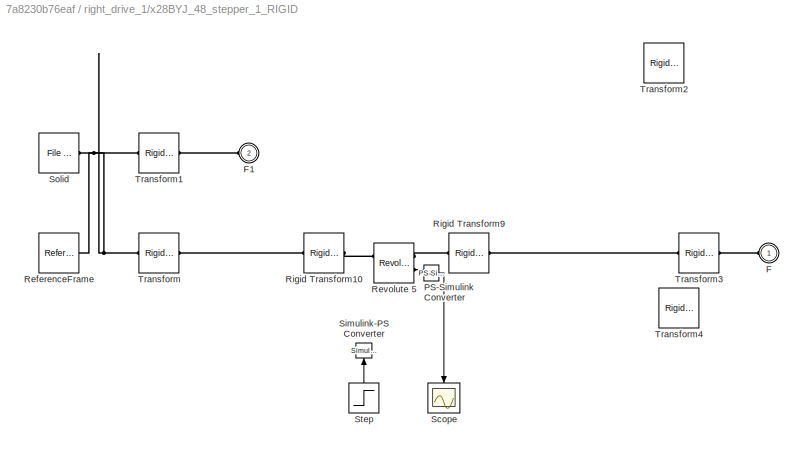
BLOCK [SubSystem] right_drive_1/x28BYJ_48_stepper_1_RIGID
  Ports = [0, 0, 0, 0, 0, 2]
  RequestExecContextInheritance = off
BLOCK [PMIOPort] right_drive_1/x28BYJ_48_stepper_1_RIGID/F
  Side = Left
BLOCK [PMIOPort] right_drive_1/x28BYJ_48_stepper_1_RIGID/F1
  Port = 2
  Side = Left
BLOCK [Reference] right_drive_1/x28BYJ_48_stepper_1_RIGID/PS-Simulink Converter  REF=nesl_utility/PS-Simulink
Converter
  Ports = [0, 1, 0, 0, 0, 1]
  SourceBlock = nesl_utility/PS-Simulink\nConverter
  SourceProductBaseCode = SS
  SourceType = PS-Simulink\nConverter
BLOCK [Reference] right_drive_1/x28BYJ_48_stepper_1_RIGID/ReferenceFrame  REF=sm_lib/Frames and
Transforms/Reference
Frame
  Ports = [0, 0, 0, 0, 0, 0, 1]
  SourceBlock = sm_lib/Frames and\nTransforms/Reference\nFrame
  SourceProductBaseCode = MS
  SourceType = Reference\nFrame
BLOCK [Reference] right_drive_1/x28BYJ_48_stepper_1_RIGID/Revolute 5  REF=sm_lib/Joints/Revolute Joint
  Ports = [0, 0, 0, 0, 0, 2, 2]
  SourceBlock = sm_lib/Joints/Revolute Joint
  SourceProductBaseCode = MS
  SourceType = Revolute Joint
BLOCK [Reference] right_drive_1/x28BYJ_48_stepper_1_RIGID/Rigid Transform10  REF=sm_lib/Frames and
Transforms/Rigid
Transform
  Ports = [0, 0, 0, 0, 0, 1, 1]
  SourceBlock = sm_lib/Frames and\nTransforms/Rigid\nTransform
  SourceProductBaseCode = MS
  SourceType = Rigid\nTransform
BLOCK [Reference] right_drive_1/x28BYJ_48_stepper_1_RIGID/Rigid Transform9  REF=sm_lib/Frames and
Transforms/Rigid
Transform
  Ports = [0, 0, 0, 0, 0, 1, 1]
  SourceBlock = sm_lib/Frames and\nTransforms/Rigid\nTransform
  SourceProductBaseCode = MS
  SourceType = Rigid\nTransform
BLOCK [Scope] right_drive_1/x28BYJ_48_stepper_1_RIGID/Scope
  Floating = off
  NameLocation = left
  NumInputPorts = 1
  Ports = [1]
  ScopeSpecificationString = Simulink.scopes.TimeScopeBlockCfg('CurrentConfiguration', extmgr.ConfigurationSet(extmgr.Configuration('Core','General UI',true),extmgr.Configuration('Core','Source UI',true),extmgr.Configuration('Sources','WiredSimulink',true,'DataLoggingVariableName','ScopeData5'),extmgr.Configuration('Visuals','Time Domain',true,'SerializedDisplays',{struct('MinYLimReal','-30548.09722','MaxYLimReal','274932.875...<+1445ch>
BLOCK [Reference] right_drive_1/x28BYJ_48_stepper_1_RIGID/Simulink-PS Converter  REF=nesl_utility/Simulink-PS
Converter
  NameLocation = right
  Ports = [1, 0, 0, 0, 0, 0, 1]
  SourceBlock = nesl_utility/Simulink-PS\nConverter
  SourceProductBaseCode = SS
  SourceType = Simulink-PS\nConverter
BLOCK [Reference] right_drive_1/x28BYJ_48_stepper_1_RIGID/Solid  REF=sm_lib/Body Elements/File Solid
  Ports = [0, 0, 0, 0, 0, 0, 1]
  SourceBlock = sm_lib/Body Elements/File Solid
  SourceProductBaseCode = MS
  SourceType = File Solid
BLOCK [Step] right_drive_1/x28BYJ_48_stepper_1_RIGID/Step
  After = .1
  NameLocation = right
  SampleTime = 0
  Time = 5
BLOCK [Reference] right_drive_1/x28BYJ_48_stepper_1_RIGID/Transform  REF=sm_lib/Frames and
Transforms/Rigid
Transform
  Ports = [0, 0, 0, 0, 0, 1, 1]
  SourceBlock = sm_lib/Frames and\nTransforms/Rigid\nTransform
  SourceProductBaseCode = MS
  SourceType = Rigid\nTransform
BLOCK [Reference] right_drive_1/x28BYJ_48_stepper_1_RIGID/Transform1  REF=sm_lib/Frames and
Transforms/Rigid
Transform
  Ports = [0, 0, 0, 0, 0, 1, 1]
  SourceBlock = sm_lib/Frames and\nTransforms/Rigid\nTransform
  SourceProductBaseCode = MS
  SourceType = Rigid\nTransform
BLOCK [Reference] right_drive_1/x28BYJ_48_stepper_1_RIGID/Transform2  REF=sm_lib/Frames and
Transforms/Rigid
Transform
  Ports = [0, 0, 0, 0, 0, 1, 1]
  SourceBlock = sm_lib/Frames and\nTransforms/Rigid\nTransform
  SourceProductBaseCode = MS
  SourceType = Rigid\nTransform
BLOCK [Reference] right_drive_1/x28BYJ_48_stepper_1_RIGID/Transform3  REF=sm_lib/Frames and
Transforms/Rigid
Transform
  Ports = [0, 0, 0, 0, 0, 1, 1]
  SourceBlock = sm_lib/Frames and\nTransforms/Rigid\nTransform
  SourceProductBaseCode = MS
  SourceType = Rigid\nTransform
BLOCK [Reference] right_drive_1/x28BYJ_48_stepper_1_RIGID/Transform4  REF=sm_lib/Frames and
Transforms/Rigid
Transform
  Ports = [0, 0, 0, 0, 0, 1, 1]
  SourceBlock = sm_lib/Frames and\nTransforms/Rigid\nTransform
  SourceProductBaseCode = MS
  SourceType = Rigid\nTransform
BLOCK [SubSystem] right_drive_2
  Ports = [0, 0, 0, 0, 0, 1, 1]
  RequestExecContextInheritance = off
BLOCK [PMIOPort] right_drive_2/F
  Side = Left
BLOCK [PMIOPort] right_drive_2/F1
  NameLocation = top
  Port = 2
  Side = Right
BLOCK [SubSystem] right_drive_2/Part_1_1_RIGID
  Ports = [0, 0, 0, 0, 0, 2]
  RequestExecContextInheritance = off
BLOCK [PMIOPort] right_drive_2/Part_1_1_RIGID/F
  Port = 2
  Side = Left
BLOCK [PMIOPort] right_drive_2/Part_1_1_RIGID/F1
  Side = Left
BLOCK [Reference] right_drive_2/Part_1_1_RIGID/ReferenceFrame  REF=sm_lib/Frames and
Transforms/Reference
Frame
  Ports = [0, 0, 0, 0, 0, 0, 1]
  SourceBlock = sm_lib/Frames and\nTransforms/Reference\nFrame
  SourceProductBaseCode = MS
  SourceType = Reference\nFrame
BLOCK [Reference] right_drive_2/Part_1_1_RIGID/Solid  REF=sm_lib/Body Elements/File Solid
  Ports = [0, 0, 0, 0, 0, 0, 1]
  SourceBlock = sm_lib/Body Elements/File Solid
  SourceProductBaseCode = MS
  SourceType = File Solid
BLOCK [Reference] right_drive_2/Part_1_1_RIGID/Transform  REF=sm_lib/Frames and
Transforms/Rigid
Transform
  Ports = [0, 0, 0, 0, 0, 1, 1]
  SourceBlock = sm_lib/Frames and\nTransforms/Rigid\nTransform
  SourceProductBaseCode = MS
  SourceType = Rigid\nTransform
BLOCK [Reference] right_drive_2/Part_1_1_RIGID/Transform1  REF=sm_lib/Frames and
Transforms/Rigid
Transform
  Ports = [0, 0, 0, 0, 0, 1, 1]
  SourceBlock = sm_lib/Frames and\nTransforms/Rigid\nTransform
  SourceProductBaseCode = MS
  SourceType = Rigid\nTransform
BLOCK [SubSystem] right_drive_2/Part_1_2_RIGID
  Ports = [0, 0, 0, 0, 0, 2]
  RequestExecContextInheritance = off
BLOCK [PMIOPort] right_drive_2/Part_1_2_RIGID/F
  Port = 2
  Side = Left
BLOCK [PMIOPort] right_drive_2/Part_1_2_RIGID/F1
  Side = Left
BLOCK [Reference] right_drive_2/Part_1_2_RIGID/ReferenceFrame  REF=sm_lib/Frames and
Transforms/Reference
Frame
  Ports = [0, 0, 0, 0, 0, 0, 1]
  SourceBlock = sm_lib/Frames and\nTransforms/Reference\nFrame
  SourceProductBaseCode = MS
  SourceType = Reference\nFrame
BLOCK [Reference] right_drive_2/Part_1_2_RIGID/Solid  REF=sm_lib/Body Elements/File Solid
  Ports = [0, 0, 0, 0, 0, 0, 1]
  SourceBlock = sm_lib/Body Elements/File Solid
  SourceProductBaseCode = MS
  SourceType = File Solid
BLOCK [Reference] right_drive_2/Part_1_2_RIGID/Transform  REF=sm_lib/Frames and
Transforms/Rigid
Transform
  Ports = [0, 0, 0, 0, 0, 1, 1]
  SourceBlock = sm_lib/Frames and\nTransforms/Rigid\nTransform
  SourceProductBaseCode = MS
  SourceType = Rigid\nTransform
BLOCK [Reference] right_drive_2/Part_1_2_RIGID/Transform1  REF=sm_lib/Frames and
Transforms/Rigid
Transform
  Ports = [0, 0, 0, 0, 0, 1, 1]
  SourceBlock = sm_lib/Frames and\nTransforms/Rigid\nTransform
  SourceProductBaseCode = MS
  SourceType = Rigid\nTransform
BLOCK [Reference] right_drive_2/ReferenceFrame  REF=sm_lib/Frames and
Transforms/Reference
Frame
  Ports = [0, 0, 0, 0, 0, 0, 1]
  SourceBlock = sm_lib/Frames and\nTransforms/Reference\nFrame
  SourceProductBaseCode = MS
  SourceType = Reference\nFrame
BLOCK [Reference] right_drive_2/Transform  REF=sm_lib/Frames and
Transforms/Rigid
Transform
  Ports = [0, 0, 0, 0, 0, 1, 1]
  SourceBlock = sm_lib/Frames and\nTransforms/Rigid\nTransform
  SourceProductBaseCode = MS
  SourceType = Rigid\nTransform
BLOCK [SubSystem] right_drive_2/motor_bracket_bottom_1_RIGID
  Ports = [0, 0, 0, 0, 0, 3]
  RequestExecContextInheritance = off
BLOCK [PMIOPort] right_drive_2/motor_bracket_bottom_1_RIGID/F
  Port = 2
  Side = Left
BLOCK [PMIOPort] right_drive_2/motor_bracket_bottom_1_RIGID/F1
  Port = 3
  Side = Left
BLOCK [PMIOPort] right_drive_2/motor_bracket_bottom_1_RIGID/F2
  Side = Left
BLOCK [Reference] right_drive_2/motor_bracket_bottom_1_RIGID/ReferenceFrame  REF=sm_lib/Frames and
Transforms/Reference
Frame
  Ports = [0, 0, 0, 0, 0, 0, 1]
  SourceBlock = sm_lib/Frames and\nTransforms/Reference\nFrame
  SourceProductBaseCode = MS
  SourceType = Reference\nFrame
BLOCK [Reference] right_drive_2/motor_bracket_bottom_1_RIGID/Solid  REF=sm_lib/Body Elements/File Solid
  Ports = [0, 0, 0, 0, 0, 0, 1]
  SourceBlock = sm_lib/Body Elements/File Solid
  SourceProductBaseCode = MS
  SourceType = File Solid
BLOCK [Reference] right_drive_2/motor_bracket_bottom_1_RIGID/Transform  REF=sm_lib/Frames and
Transforms/Rigid
Transform
  Ports = [0, 0, 0, 0, 0, 1, 1]
  SourceBlock = sm_lib/Frames and\nTransforms/Rigid\nTransform
  SourceProductBaseCode = MS
  SourceType = Rigid\nTransform
BLOCK [Reference] right_drive_2/motor_bracket_bottom_1_RIGID/Transform1  REF=sm_lib/Frames and
Transforms/Rigid
Transform
  Ports = [0, 0, 0, 0, 0, 1, 1]
  SourceBlock = sm_lib/Frames and\nTransforms/Rigid\nTransform
  SourceProductBaseCode = MS
  SourceType = Rigid\nTransform
BLOCK [Reference] right_drive_2/motor_bracket_bottom_1_RIGID/Transform2  REF=sm_lib/Frames and
Transforms/Rigid
Transform
  Ports = [0, 0, 0, 0, 0, 1, 1]
  SourceBlock = sm_lib/Frames and\nTransforms/Rigid\nTransform
  SourceProductBaseCode = MS
  SourceType = Rigid\nTransform
BLOCK [SubSystem] right_drive_2/motor_bracket_top_1_RIGID
  Ports = [0, 0, 0, 0, 0, 2]
  RequestExecContextInheritance = off
BLOCK [PMIOPort] right_drive_2/motor_bracket_top_1_RIGID/F
  Side = Left
BLOCK [PMIOPort] right_drive_2/motor_bracket_top_1_RIGID/F1
  Port = 2
  Side = Left
BLOCK [Reference] right_drive_2/motor_bracket_top_1_RIGID/ReferenceFrame  REF=sm_lib/Frames and
Transforms/Reference
Frame
  Ports = [0, 0, 0, 0, 0, 0, 1]
  SourceBlock = sm_lib/Frames and\nTransforms/Reference\nFrame
  SourceProductBaseCode = MS
  SourceType = Reference\nFrame
BLOCK [Reference] right_drive_2/motor_bracket_top_1_RIGID/Solid  REF=sm_lib/Body Elements/File Solid
  Ports = [0, 0, 0, 0, 0, 0, 1]
  SourceBlock = sm_lib/Body Elements/File Solid
  SourceProductBaseCode = MS
  SourceType = File Solid
BLOCK [Reference] right_drive_2/motor_bracket_top_1_RIGID/Transform  REF=sm_lib/Frames and
Transforms/Rigid
Transform
  Ports = [0, 0, 0, 0, 0, 1, 1]
  SourceBlock = sm_lib/Frames and\nTransforms/Rigid\nTransform
  SourceProductBaseCode = MS
  SourceType = Rigid\nTransform
BLOCK [Reference] right_drive_2/motor_bracket_top_1_RIGID/Transform1  REF=sm_lib/Frames and
Transforms/Rigid
Transform
  Ports = [0, 0, 0, 0, 0, 1, 1]
  SourceBlock = sm_lib/Frames and\nTransforms/Rigid\nTransform
  SourceProductBaseCode = MS
  SourceType = Rigid\nTransform
BLOCK [SubSystem] right_drive_2/servo_bracket_r_2_RIGID
  Ports = [0, 0, 0, 0, 0, 2]
  RequestExecContextInheritance = off
BLOCK [PMIOPort] right_drive_2/servo_bracket_r_2_RIGID/F
  Side = Left
BLOCK [PMIOPort] right_drive_2/servo_bracket_r_2_RIGID/F1
  Port = 2
  Side = Left
BLOCK [Reference] right_drive_2/servo_bracket_r_2_RIGID/ReferenceFrame  REF=sm_lib/Frames and
Transforms/Reference
Frame
  Ports = [0, 0, 0, 0, 0, 0, 1]
  SourceBlock = sm_lib/Frames and\nTransforms/Reference\nFrame
  SourceProductBaseCode = MS
  SourceType = Reference\nFrame
BLOCK [Reference] right_drive_2/servo_bracket_r_2_RIGID/Solid  REF=sm_lib/Body Elements/File Solid
  Ports = [0, 0, 0, 0, 0, 0, 1]
  SourceBlock = sm_lib/Body Elements/File Solid
  SourceProductBaseCode = MS
  SourceType = File Solid
BLOCK [Reference] right_drive_2/servo_bracket_r_2_RIGID/Transform  REF=sm_lib/Frames and
Transforms/Rigid
Transform
  Ports = [0, 0, 0, 0, 0, 1, 1]
  SourceBlock = sm_lib/Frames and\nTransforms/Rigid\nTransform
  SourceProductBaseCode = MS
  SourceType = Rigid\nTransform
BLOCK [Reference] right_drive_2/servo_bracket_r_2_RIGID/Transform1  REF=sm_lib/Frames and
Transforms/Rigid
Transform
  Ports = [0, 0, 0, 0, 0, 1, 1]
  SourceBlock = sm_lib/Frames and\nTransforms/Rigid\nTransform
  SourceProductBaseCode = MS
  SourceType = Rigid\nTransform
BLOCK [SubSystem] right_drive_2/wheel_1_RIGID
  Ports = [0, 0, 0, 0, 0, 1, 1]
  RequestExecContextInheritance = off
BLOCK [PMIOPort] right_drive_2/wheel_1_RIGID/F
  Side = Left
BLOCK [PMIOPort] right_drive_2/wheel_1_RIGID/F1
  Port = 2
  Side = Right
BLOCK [Reference] right_drive_2/wheel_1_RIGID/ReferenceFrame  REF=sm_lib/Frames and
Transforms/Reference
Frame
  Ports = [0, 0, 0, 0, 0, 0, 1]
  SourceBlock = sm_lib/Frames and\nTransforms/Reference\nFrame
  SourceProductBaseCode = MS
  SourceType = Reference\nFrame
BLOCK [Reference] right_drive_2/wheel_1_RIGID/Solid  REF=sm_lib/Body Elements/File Solid
  Ports = [0, 0, 0, 0, 0, 0, 1]
  SourceBlock = sm_lib/Body Elements/File Solid
  SourceProductBaseCode = MS
  SourceType = File Solid
BLOCK [Reference] right_drive_2/wheel_1_RIGID/Transform  REF=sm_lib/Frames and
Transforms/Rigid
Transform
  Ports = [0, 0, 0, 0, 0, 1, 1]
  SourceBlock = sm_lib/Frames and\nTransforms/Rigid\nTransform
  SourceProductBaseCode = MS
  SourceType = Rigid\nTransform
BLOCK [SubSystem] right_drive_2/x28BYJ_48_stepper_1_RIGID
  Ports = [0, 0, 0, 0, 0, 2]
  RequestExecContextInheritance = off
BLOCK [PMIOPort] right_drive_2/x28BYJ_48_stepper_1_RIGID/F
  Side = Left
BLOCK [PMIOPort] right_drive_2/x28BYJ_48_stepper_1_RIGID/F1
  Port = 2
  Side = Left
BLOCK [Reference] right_drive_2/x28BYJ_48_stepper_1_RIGID/PS-Simulink Converter  REF=nesl_utility/PS-Simulink
Converter
  Ports = [0, 1, 0, 0, 0, 1]
  SourceBlock = nesl_utility/PS-Simulink\nConverter
  SourceProductBaseCode = SS
  SourceType = PS-Simulink\nConverter
BLOCK [Reference] right_drive_2/x28BYJ_48_stepper_1_RIGID/ReferenceFrame  REF=sm_lib/Frames and
Transforms/Reference
Frame
  Ports = [0, 0, 0, 0, 0, 0, 1]
  SourceBlock = sm_lib/Frames and\nTransforms/Reference\nFrame
  SourceProductBaseCode = MS
  SourceType = Reference\nFrame
BLOCK [Reference] right_drive_2/x28BYJ_48_stepper_1_RIGID/Revolute 5  REF=sm_lib/Joints/Revolute Joint
  Ports = [0, 0, 0, 0, 0, 2, 2]
  SourceBlock = sm_lib/Joints/Revolute Joint
  SourceProductBaseCode = MS
  SourceType = Revolute Joint
BLOCK [Reference] right_drive_2/x28BYJ_48_stepper_1_RIGID/Rigid Transform10  REF=sm_lib/Frames and
Transforms/Rigid
Transform
  Ports = [0, 0, 0, 0, 0, 1, 1]
  SourceBlock = sm_lib/Frames and\nTransforms/Rigid\nTransform
  SourceProductBaseCode = MS
  SourceType = Rigid\nTransform
BLOCK [Reference] right_drive_2/x28BYJ_48_stepper_1_RIGID/Rigid Transform9  REF=sm_lib/Frames and
Transforms/Rigid
Transform
  Ports = [0, 0, 0, 0, 0, 1, 1]
  SourceBlock = sm_lib/Frames and\nTransforms/Rigid\nTransform
  SourceProductBaseCode = MS
  SourceType = Rigid\nTransform
BLOCK [Scope] right_drive_2/x28BYJ_48_stepper_1_RIGID/Scope
  Floating = off
  NameLocation = left
  NumInputPorts = 1
  Ports = [1]
  ScopeSpecificationString = Simulink.scopes.TimeScopeBlockCfg('CurrentConfiguration', extmgr.ConfigurationSet(extmgr.Configuration('Core','General UI',true),extmgr.Configuration('Core','Source UI',true),extmgr.Configuration('Sources','WiredSimulink',true,'DataLoggingVariableName','ScopeData3'),extmgr.Configuration('Visuals','Time Domain',true,'SerializedDisplays',{struct('MinYLimReal','-30548.09722','MaxYLimReal','274932.875...<+1445ch>
BLOCK [Reference] right_drive_2/x28BYJ_48_stepper_1_RIGID/Simulink-PS Converter  REF=nesl_utility/Simulink-PS
Converter
  NameLocation = right
  Ports = [1, 0, 0, 0, 0, 0, 1]
  SourceBlock = nesl_utility/Simulink-PS\nConverter
  SourceProductBaseCode = SS
  SourceType = Simulink-PS\nConverter
BLOCK [Reference] right_drive_2/x28BYJ_48_stepper_1_RIGID/Solid  REF=sm_lib/Body Elements/File Solid
  Ports = [0, 0, 0, 0, 0, 0, 1]
  SourceBlock = sm_lib/Body Elements/File Solid
  SourceProductBaseCode = MS
  SourceType = File Solid
BLOCK [Step] right_drive_2/x28BYJ_48_stepper_1_RIGID/Step
  After = .1
  NameLocation = right
  SampleTime = 0
  Time = 5
BLOCK [Reference] right_drive_2/x28BYJ_48_stepper_1_RIGID/Transform  REF=sm_lib/Frames and
Transforms/Rigid
Transform
  Ports = [0, 0, 0, 0, 0, 1, 1]
  SourceBlock = sm_lib/Frames and\nTransforms/Rigid\nTransform
  SourceProductBaseCode = MS
  SourceType = Rigid\nTransform
BLOCK [Reference] right_drive_2/x28BYJ_48_stepper_1_RIGID/Transform1  REF=sm_lib/Frames and
Transforms/Rigid
Transform
  Ports = [0, 0, 0, 0, 0, 1, 1]
  SourceBlock = sm_lib/Frames and\nTransforms/Rigid\nTransform
  SourceProductBaseCode = MS
  SourceType = Rigid\nTransform
BLOCK [Reference] right_drive_2/x28BYJ_48_stepper_1_RIGID/Transform2  REF=sm_lib/Frames and
Transforms/Rigid
Transform
  Ports = [0, 0, 0, 0, 0, 1, 1]
  SourceBlock = sm_lib/Frames and\nTransforms/Rigid\nTransform
  SourceProductBaseCode = MS
  SourceType = Rigid\nTransform
BLOCK [Reference] right_drive_2/x28BYJ_48_stepper_1_RIGID/Transform3  REF=sm_lib/Frames and
Transforms/Rigid
Transform
  Ports = [0, 0, 0, 0, 0, 1, 1]
  SourceBlock = sm_lib/Frames and\nTransforms/Rigid\nTransform
  SourceProductBaseCode = MS
  SourceType = Rigid\nTransform
BLOCK [SubSystem] solar_panel_1_RIGID
  Ports = [0, 0, 0, 0, 0, 1]
  RequestExecContextInheritance = off
BLOCK [PMIOPort] solar_panel_1_RIGID/F
  Side = Left
BLOCK [Reference] solar_panel_1_RIGID/ReferenceFrame  REF=sm_lib/Frames and
Transforms/Reference
Frame
  Ports = [0, 0, 0, 0, 0, 0, 1]
  SourceBlock = sm_lib/Frames and\nTransforms/Reference\nFrame
  SourceProductBaseCode = MS
  SourceType = Reference\nFrame
BLOCK [Reference] solar_panel_1_RIGID/Solid  REF=sm_lib/Body Elements/File Solid
  Ports = [0, 0, 0, 0, 0, 0, 1]
  SourceBlock = sm_lib/Body Elements/File Solid
  SourceProductBaseCode = MS
  SourceType = File Solid
BLOCK [Reference] solar_panel_1_RIGID/Transform  REF=sm_lib/Frames and
Transforms/Rigid
Transform
  Ports = [0, 0, 0, 0, 0, 1, 1]
  SourceBlock = sm_lib/Frames and\nTransforms/Rigid\nTransform
  SourceProductBaseCode = MS
  SourceType = Rigid\nTransform
BLOCK [SubSystem] wheel_1_RIGID
  Ports = [0, 0, 0, 0, 0, 1, 1]
  RequestExecContextInheritance = off
BLOCK [PMIOPort] wheel_1_RIGID/F
  Side = Left
BLOCK [PMIOPort] wheel_1_RIGID/F1
  Port = 2
  Side = Right
BLOCK [Reference] wheel_1_RIGID/ReferenceFrame  REF=sm_lib/Frames and
Transforms/Reference
Frame
  Ports = [0, 0, 0, 0, 0, 0, 1]
  SourceBlock = sm_lib/Frames and\nTransforms/Reference\nFrame
  SourceProductBaseCode = MS
  SourceType = Reference\nFrame
BLOCK [Reference] wheel_1_RIGID/Solid  REF=sm_lib/Body Elements/File Solid
  Ports = [0, 0, 0, 0, 0, 0, 1]
  SourceBlock = sm_lib/Body Elements/File Solid
  SourceProductBaseCode = MS
  SourceType = File Solid
BLOCK [Reference] wheel_1_RIGID/Transform  REF=sm_lib/Frames and
Transforms/Rigid
Transform
  Ports = [0, 0, 0, 0, 0, 1, 1]
  SourceBlock = sm_lib/Frames and\nTransforms/Rigid\nTransform
  SourceProductBaseCode = MS
  SourceType = Rigid\nTransform
BLOCK [SubSystem] wheel_2_RIGID
  Ports = [0, 0, 0, 0, 0, 1, 1]
  RequestExecContextInheritance = off
BLOCK [PMIOPort] wheel_2_RIGID/F
  Side = Left
BLOCK [PMIOPort] wheel_2_RIGID/F1
  Port = 2
  Side = Right
BLOCK [Reference] wheel_2_RIGID/ReferenceFrame  REF=sm_lib/Frames and
Transforms/Reference
Frame
  Ports = [0, 0, 0, 0, 0, 0, 1]
  SourceBlock = sm_lib/Frames and\nTransforms/Reference\nFrame
  SourceProductBaseCode = MS
  SourceType = Reference\nFrame
BLOCK [Reference] wheel_2_RIGID/Solid  REF=sm_lib/Body Elements/File Solid
  Ports = [0, 0, 0, 0, 0, 0, 1]
  SourceBlock = sm_lib/Body Elements/File Solid
  SourceProductBaseCode = MS
  SourceType = File Solid
BLOCK [Reference] wheel_2_RIGID/Transform  REF=sm_lib/Frames and
Transforms/Rigid
Transform
  Ports = [0, 0, 0, 0, 0, 1, 1]
  SourceBlock = sm_lib/Frames and\nTransforms/Rigid\nTransform
  SourceProductBaseCode = MS
  SourceType = Rigid\nTransform
BLOCK [SubSystem] x28BYJ_48_stepper_1_RIGID
  Ports = [0, 0, 0, 0, 0, 2]
  RequestExecContextInheritance = off
BLOCK [PMIOPort] x28BYJ_48_stepper_1_RIGID/F
  Port = 2
  Side = Left
BLOCK [PMIOPort] x28BYJ_48_stepper_1_RIGID/F1
  Side = Left
BLOCK [Reference] x28BYJ_48_stepper_1_RIGID/PS-Simulink Converter  REF=nesl_utility/PS-Simulink
Converter
  Ports = [0, 1, 0, 0, 0, 1]
  SourceBlock = nesl_utility/PS-Simulink\nConverter
  SourceProductBaseCode = SS
  SourceType = PS-Simulink\nConverter
BLOCK [Reference] x28BYJ_48_stepper_1_RIGID/ReferenceFrame  REF=sm_lib/Frames and
Transforms/Reference
Frame
  Ports = [0, 0, 0, 0, 0, 0, 1]
  SourceBlock = sm_lib/Frames and\nTransforms/Reference\nFrame
  SourceProductBaseCode = MS
  SourceType = Reference\nFrame
BLOCK [Reference] x28BYJ_48_stepper_1_RIGID/Revolute 5  REF=sm_lib/Joints/Revolute Joint
  Ports = [0, 0, 0, 0, 0, 2, 2]
  SourceBlock = sm_lib/Joints/Revolute Joint
  SourceProductBaseCode = MS
  SourceType = Revolute Joint
BLOCK [Reference] x28BYJ_48_stepper_1_RIGID/Rigid Transform10  REF=sm_lib/Frames and
Transforms/Rigid
Transform
  Ports = [0, 0, 0, 0, 0, 1, 1]
  SourceBlock = sm_lib/Frames and\nTransforms/Rigid\nTransform
  SourceProductBaseCode = MS
  SourceType = Rigid\nTransform
BLOCK [Reference] x28BYJ_48_stepper_1_RIGID/Rigid Transform9  REF=sm_lib/Frames and
Transforms/Rigid
Transform
  Ports = [0, 0, 0, 0, 0, 1, 1]
  SourceBlock = sm_lib/Frames and\nTransforms/Rigid\nTransform
  SourceProductBaseCode = MS
  SourceType = Rigid\nTransform
BLOCK [Scope] x28BYJ_48_stepper_1_RIGID/Scope
  Floating = off
  NameLocation = left
  NumInputPorts = 1
  Ports = [1]
  ScopeSpecificationString = Simulink.scopes.TimeScopeBlockCfg('CurrentConfiguration', extmgr.ConfigurationSet(extmgr.Configuration('Core','General UI',true),extmgr.Configuration('Core','Source UI',true),extmgr.Configuration('Sources','WiredSimulink',true,'DataLoggingVariableName','ScopeData4'),extmgr.Configuration('Visuals','Time Domain',true,'SerializedDisplays',{struct('MinYLimReal','-30548.09722','MaxYLimReal','274932.875...<+1445ch>
BLOCK [Reference] x28BYJ_48_stepper_1_RIGID/Simulink-PS Converter  REF=nesl_utility/Simulink-PS
Converter
  NameLocation = right
  Ports = [1, 0, 0, 0, 0, 0, 1]
  SourceBlock = nesl_utility/Simulink-PS\nConverter
  SourceProductBaseCode = SS
  SourceType = Simulink-PS\nConverter
BLOCK [Reference] x28BYJ_48_stepper_1_RIGID/Solid  REF=sm_lib/Body Elements/File Solid
  Ports = [0, 0, 0, 0, 0, 0, 1]
  SourceBlock = sm_lib/Body Elements/File Solid
  SourceProductBaseCode = MS
  SourceType = File Solid
BLOCK [Step] x28BYJ_48_stepper_1_RIGID/Step
  After = .1
  NameLocation = right
  SampleTime = 0
  Time = 5
BLOCK [Reference] x28BYJ_48_stepper_1_RIGID/Transform  REF=sm_lib/Frames and
Transforms/Rigid
Transform
  Ports = [0, 0, 0, 0, 0, 1, 1]
  SourceBlock = sm_lib/Frames and\nTransforms/Rigid\nTransform
  SourceProductBaseCode = MS
  SourceType = Rigid\nTransform
BLOCK [Reference] x28BYJ_48_stepper_1_RIGID/Transform1  REF=sm_lib/Frames and
Transforms/Rigid
Transform
  Ports = [0, 0, 0, 0, 0, 1, 1]
  SourceBlock = sm_lib/Frames and\nTransforms/Rigid\nTransform
  SourceProductBaseCode = MS
  SourceType = Rigid\nTransform
BLOCK [Reference] x28BYJ_48_stepper_1_RIGID/Transform2  REF=sm_lib/Frames and
Transforms/Rigid
Transform
  Ports = [0, 0, 0, 0, 0, 1, 1]
  SourceBlock = sm_lib/Frames and\nTransforms/Rigid\nTransform
  SourceProductBaseCode = MS
  SourceType = Rigid\nTransform
BLOCK [Reference] x28BYJ_48_stepper_1_RIGID/Transform3  REF=sm_lib/Frames and
Transforms/Rigid
Transform
  Ports = [0, 0, 0, 0, 0, 1, 1]
  SourceBlock = sm_lib/Frames and\nTransforms/Rigid\nTransform
  SourceProductBaseCode = MS
  SourceType = Rigid\nTransform
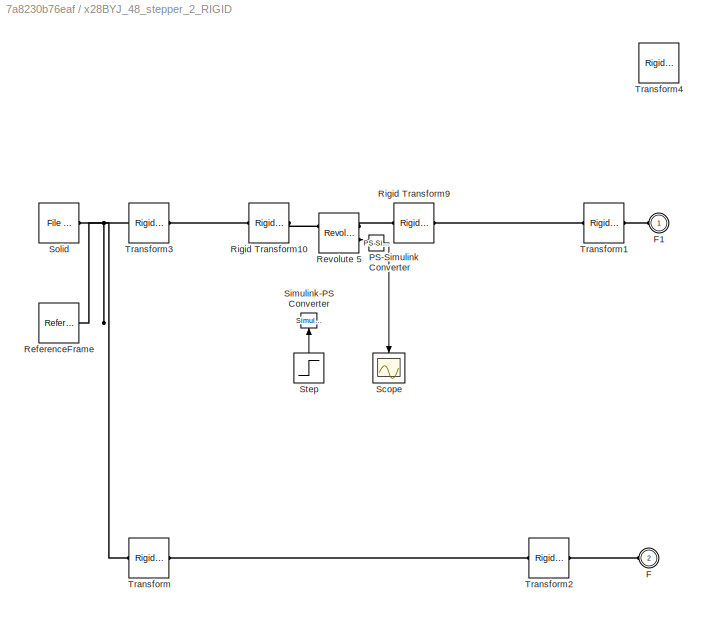
BLOCK [SubSystem] x28BYJ_48_stepper_2_RIGID
  Ports = [0, 0, 0, 0, 0, 2]
  RequestExecContextInheritance = off
BLOCK [PMIOPort] x28BYJ_48_stepper_2_RIGID/F
  Port = 2
  Side = Left
BLOCK [PMIOPort] x28BYJ_48_stepper_2_RIGID/F1
  Side = Left
BLOCK [Reference] x28BYJ_48_stepper_2_RIGID/PS-Simulink Converter  REF=nesl_utility/PS-Simulink
Converter
  Ports = [0, 1, 0, 0, 0, 1]
  SourceBlock = nesl_utility/PS-Simulink\nConverter
  SourceProductBaseCode = SS
  SourceType = PS-Simulink\nConverter
BLOCK [Reference] x28BYJ_48_stepper_2_RIGID/ReferenceFrame  REF=sm_lib/Frames and
Transforms/Reference
Frame
  Ports = [0, 0, 0, 0, 0, 0, 1]
  SourceBlock = sm_lib/Frames and\nTransforms/Reference\nFrame
  SourceProductBaseCode = MS
  SourceType = Reference\nFrame
BLOCK [Reference] x28BYJ_48_stepper_2_RIGID/Revolute 5  REF=sm_lib/Joints/Revolute Joint
  Ports = [0, 0, 0, 0, 0, 2, 2]
  SourceBlock = sm_lib/Joints/Revolute Joint
  SourceProductBaseCode = MS
  SourceType = Revolute Joint
BLOCK [Reference] x28BYJ_48_stepper_2_RIGID/Rigid Transform10  REF=sm_lib/Frames and
Transforms/Rigid
Transform
  Ports = [0, 0, 0, 0, 0, 1, 1]
  SourceBlock = sm_lib/Frames and\nTransforms/Rigid\nTransform
  SourceProductBaseCode = MS
  SourceType = Rigid\nTransform
BLOCK [Reference] x28BYJ_48_stepper_2_RIGID/Rigid Transform9  REF=sm_lib/Frames and
Transforms/Rigid
Transform
  Ports = [0, 0, 0, 0, 0, 1, 1]
  SourceBlock = sm_lib/Frames and\nTransforms/Rigid\nTransform
  SourceProductBaseCode = MS
  SourceType = Rigid\nTransform
BLOCK [Scope] x28BYJ_48_stepper_2_RIGID/Scope
  Floating = off
  NameLocation = left
  NumInputPorts = 1
  Ports = [1]
  ScopeSpecificationString = Simulink.scopes.TimeScopeBlockCfg('CurrentConfiguration', extmgr.ConfigurationSet(extmgr.Configuration('Core','General UI',true),extmgr.Configuration('Core','Source UI',true),extmgr.Configuration('Sources','WiredSimulink',true,'DataLoggingVariableName','ScopeData1'),extmgr.Configuration('Visuals','Time Domain',true,'SerializedDisplays',{struct('MinYLimReal','-30548.09722','MaxYLimReal','274932.875...<+1445ch>
BLOCK [Reference] x28BYJ_48_stepper_2_RIGID/Simulink-PS Converter  REF=nesl_utility/Simulink-PS
Converter
  NameLocation = right
  Ports = [1, 0, 0, 0, 0, 0, 1]
  SourceBlock = nesl_utility/Simulink-PS\nConverter
  SourceProductBaseCode = SS
  SourceType = Simulink-PS\nConverter
BLOCK [Reference] x28BYJ_48_stepper_2_RIGID/Solid  REF=sm_lib/Body Elements/File Solid
  Ports = [0, 0, 0, 0, 0, 0, 1]
  SourceBlock = sm_lib/Body Elements/File Solid
  SourceProductBaseCode = MS
  SourceType = File Solid
BLOCK [Step] x28BYJ_48_stepper_2_RIGID/Step
  NameLocation = right
  SampleTime = 0
  Time = 5
BLOCK [Reference] x28BYJ_48_stepper_2_RIGID/Transform  REF=sm_lib/Frames and
Transforms/Rigid
Transform
  Ports = [0, 0, 0, 0, 0, 1, 1]
  SourceBlock = sm_lib/Frames and\nTransforms/Rigid\nTransform
  SourceProductBaseCode = MS
  SourceType = Rigid\nTransform
BLOCK [Reference] x28BYJ_48_stepper_2_RIGID/Transform1  REF=sm_lib/Frames and
Transforms/Rigid
Transform
  Ports = [0, 0, 0, 0, 0, 1, 1]
  SourceBlock = sm_lib/Frames and\nTransforms/Rigid\nTransform
  SourceProductBaseCode = MS
  SourceType = Rigid\nTransform
BLOCK [Reference] x28BYJ_48_stepper_2_RIGID/Transform2  REF=sm_lib/Frames and
Transforms/Rigid
Transform
  Ports = [0, 0, 0, 0, 0, 1, 1]
  SourceBlock = sm_lib/Frames and\nTransforms/Rigid\nTransform
  SourceProductBaseCode = MS
  SourceType = Rigid\nTransform
BLOCK [Reference] x28BYJ_48_stepper_2_RIGID/Transform3  REF=sm_lib/Frames and
Transforms/Rigid
Transform
  Ports = [0, 0, 0, 0, 0, 1, 1]
  SourceBlock = sm_lib/Frames and\nTransforms/Rigid\nTransform
  SourceProductBaseCode = MS
  SourceType = Rigid\nTransform
BLOCK [Reference] x28BYJ_48_stepper_2_RIGID/Transform4  REF=sm_lib/Frames and
Transforms/Rigid
Transform
  Ports = [0, 0, 0, 0, 0, 1, 1]
  SourceBlock = sm_lib/Frames and\nTransforms/Rigid\nTransform
  SourceProductBaseCode = MS
  SourceType = Rigid\nTransform
LINE left_drive_1/x28BYJ_48_stepper_1_RIGID/PS-Simulink Converter:1 -> left_drive_1/x28BYJ_48_stepper_1_RIGID/Scope:1
LINE left_drive_1/x28BYJ_48_stepper_1_RIGID/Step:1 -> left_drive_1/x28BYJ_48_stepper_1_RIGID/Simulink-PS Converter:1
LINE left_drive_2/x28BYJ_48_stepper_1_RIGID/PS-Simulink Converter:1 -> left_drive_2/x28BYJ_48_stepper_1_RIGID/Scope:1
LINE left_drive_2/x28BYJ_48_stepper_1_RIGID/Step:1 -> left_drive_2/x28BYJ_48_stepper_1_RIGID/Simulink-PS Converter:1
LINE right_drive_1/x28BYJ_48_stepper_1_RIGID/PS-Simulink Converter:1 -> right_drive_1/x28BYJ_48_stepper_1_RIGID/Scope:1
LINE right_drive_1/x28BYJ_48_stepper_1_RIGID/Step:1 -> right_drive_1/x28BYJ_48_stepper_1_RIGID/Simulink-PS Converter:1
LINE right_drive_2/x28BYJ_48_stepper_1_RIGID/PS-Simulink Converter:1 -> right_drive_2/x28BYJ_48_stepper_1_RIGID/Scope:1
LINE right_drive_2/x28BYJ_48_stepper_1_RIGID/Step:1 -> right_drive_2/x28BYJ_48_stepper_1_RIGID/Simulink-PS Converter:1
LINE x28BYJ_48_stepper_1_RIGID/PS-Simulink Converter:1 -> x28BYJ_48_stepper_1_RIGID/Scope:1
LINE x28BYJ_48_stepper_1_RIGID/Step:1 -> x28BYJ_48_stepper_1_RIGID/Simulink-PS Converter:1
LINE x28BYJ_48_stepper_2_RIGID/PS-Simulink Converter:1 -> x28BYJ_48_stepper_2_RIGID/Scope:1
LINE x28BYJ_48_stepper_2_RIGID/Step:1 -> x28BYJ_48_stepper_2_RIGID/Simulink-PS Converter:1
PLINE 6-DOF Joint:LConn1 -- World1:RConn1
PLINE 6-DOF Joint:RConn1 -- box_1_RIGID:LConn4
PNET net1: MechanismConfiguration:RConn1 -- Plane:RConn1 -- Solver Configuration:RConn1 -- World:RConn1
PNET net2: Plane/B:RConn1 -- Plane/F:RConn1 -- Plane/Plane:RConn1
PNET net3: Plane:LConn1 -- Sphere to Plane Force1:RConn1 -- Sphere to Plane Force2:RConn1 -- Sphere to Plane Force3:RConn1 -- Sphere to Plane Force4:RConn1 -- Sphere to Plane Force5:RConn1 -- Sphere to Plane Force6:RConn1
PLINE Revolute2:LConn1 -- beam_front_r_1_RIGID:RConn1
PLINE Revolute2:RConn1 -- beam_back_r_1_RIGID:LConn3
PLINE Revolute5:LConn1 -- beam_front_l_1_RIGID:RConn1
PLINE Revolute5:RConn1 -- beam_back_l_1_RIGID:LConn3
PLINE Sphere to Plane Force1:LConn1 -- right_drive_2:RConn1
PLINE Sphere to Plane Force2:LConn1 -- wheel_1_RIGID:RConn1
PLINE Sphere to Plane Force3:LConn1 -- left_drive_2:RConn1
PLINE Sphere to Plane Force4:LConn1 -- right_drive_1:RConn1
PLINE Sphere to Plane Force5:LConn1 -- left_drive_1:RConn1
PLINE Sphere to Plane Force6:LConn1 -- wheel_2_RIGID:RConn1
PLINE axle_end_1_RIGID/F:RConn1 -- axle_end_1_RIGID/Transform:RConn1
PNET net4: axle_end_1_RIGID/ReferenceFrame:RConn1 -- axle_end_1_RIGID/Solid:RConn1 -- axle_end_1_RIGID/Transform:LConn1
PLINE axle_end_1_RIGID:LConn1 -- beam_back_r_1_RIGID:LConn2
PLINE axle_end_2_RIGID/F:RConn1 -- axle_end_2_RIGID/Transform:RConn1
PNET net5: axle_end_2_RIGID/ReferenceFrame:RConn1 -- axle_end_2_RIGID/Solid:RConn1 -- axle_end_2_RIGID/Transform:LConn1
PLINE axle_end_2_RIGID:LConn1 -- beam_front_l_1_RIGID:LConn1
PLINE axle_end_front_1_RIGID/F:RConn1 -- axle_end_front_1_RIGID/Transform:RConn1
PNET net6: axle_end_front_1_RIGID/ReferenceFrame:RConn1 -- axle_end_front_1_RIGID/Solid:RConn1 -- axle_end_front_1_RIGID/Transform:LConn1
PLINE axle_end_front_1_RIGID:LConn1 -- box_1_RIGID:LConn2
PLINE axle_end_front_2_RIGID/F:RConn1 -- axle_end_front_2_RIGID/Transform:RConn1
PNET net7: axle_end_front_2_RIGID/ReferenceFrame:RConn1 -- axle_end_front_2_RIGID/Solid:RConn1 -- axle_end_front_2_RIGID/Transform:LConn1
PLINE axle_end_front_2_RIGID:LConn1 -- box_1_RIGID:LConn1
PLINE beam_back_l_1_RIGID/F1:RConn1 -- beam_back_l_1_RIGID/Transform1:RConn1
PLINE beam_back_l_1_RIGID/F2:RConn1 -- beam_back_l_1_RIGID/Transform2:RConn1
PLINE beam_back_l_1_RIGID/F:RConn1 -- beam_back_l_1_RIGID/Transform:RConn1
PNET net8: beam_back_l_1_RIGID/ReferenceFrame:RConn1 -- beam_back_l_1_RIGID/Solid:RConn1 -- beam_back_l_1_RIGID/Transform1:LConn1 -- beam_back_l_1_RIGID/Transform2:LConn1 -- beam_back_l_1_RIGID/Transform:LConn1
PLINE beam_back_l_1_RIGID:LConn1 -- left_drive_1:LConn1
PLINE beam_back_l_1_RIGID:LConn2 -- motor_bracket_bottom_2_RIGID:LConn2
PLINE beam_back_r_1_RIGID/F1:RConn1 -- beam_back_r_1_RIGID/Transform1:RConn1
PLINE beam_back_r_1_RIGID/F2:RConn1 -- beam_back_r_1_RIGID/Transform2:RConn1
PLINE beam_back_r_1_RIGID/F3:RConn1 -- beam_back_r_1_RIGID/Transform3:RConn1
PLINE beam_back_r_1_RIGID/F:RConn1 -- beam_back_r_1_RIGID/Transform:RConn1
PNET net9: beam_back_r_1_RIGID/ReferenceFrame:RConn1 -- beam_back_r_1_RIGID/Solid:RConn1 -- beam_back_r_1_RIGID/Transform1:LConn1 -- beam_back_r_1_RIGID/Transform2:LConn1 -- beam_back_r_1_RIGID/Transform3:LConn1 -- beam_back_r_1_RIGID/Transform:LConn1
PLINE beam_back_r_1_RIGID:LConn1 -- motor_bracket_bottom_1_RIGID:LConn2
PLINE beam_back_r_1_RIGID:LConn4 -- right_drive_1:LConn1
PLINE beam_front_l_1_RIGID/F1:RConn1 -- beam_front_l_1_RIGID/Transform1:RConn1
PLINE beam_front_l_1_RIGID/F2:RConn1 -- beam_front_l_1_RIGID/Transform2:RConn1
PLINE beam_front_l_1_RIGID/F3:RConn1 -- beam_front_l_1_RIGID/Transform3:RConn1
PLINE beam_front_l_1_RIGID/F:RConn1 -- beam_front_l_1_RIGID/Transform:RConn1
PNET net10: beam_front_l_1_RIGID/ReferenceFrame:RConn1 -- beam_front_l_1_RIGID/Solid:RConn1 -- beam_front_l_1_RIGID/Transform1:LConn1 -- beam_front_l_1_RIGID/Transform2:LConn1 -- beam_front_l_1_RIGID/Transform3:LConn1 -- beam_front_l_1_RIGID/Transform:LConn1
PLINE beam_front_l_1_RIGID:LConn2 -- box_1_RIGID:RConn2
PLINE beam_front_l_1_RIGID:LConn3 -- left_drive_2:LConn1
PLINE beam_front_r_1_RIGID/F1:RConn1 -- beam_front_r_1_RIGID/Transform1:RConn1
PLINE beam_front_r_1_RIGID/F2:RConn1 -- beam_front_r_1_RIGID/Transform2:RConn1
PLINE beam_front_r_1_RIGID/F3:RConn1 -- beam_front_r_1_RIGID/Transform3:RConn1
PNET net11: beam_front_r_1_RIGID/ReferenceFrame:RConn1 -- beam_front_r_1_RIGID/Solid:RConn1 -- beam_front_r_1_RIGID/Transform1:LConn1 -- beam_front_r_1_RIGID/Transform2:LConn1 -- beam_front_r_1_RIGID/Transform3:LConn1
PLINE beam_front_r_1_RIGID:LConn1 -- box_1_RIGID:RConn1
PLINE beam_front_r_1_RIGID:LConn2 -- right_drive_2:LConn1
PLINE box_1_RIGID/F1:RConn1 -- box_1_RIGID/Transform1:RConn1
PLINE box_1_RIGID/F2:RConn1 -- box_1_RIGID/Transform2:RConn1
PLINE box_1_RIGID/F3:RConn1 -- box_1_RIGID/Transform3:RConn1
PLINE box_1_RIGID/F4:RConn1 -- box_1_RIGID/Transform4:RConn1
PNET net12: box_1_RIGID/F5:RConn1 -- box_1_RIGID/ReferenceFrame:RConn1 -- box_1_RIGID/Solid:RConn1 -- box_1_RIGID/Transform1:LConn1 -- box_1_RIGID/Transform2:LConn1 -- box_1_RIGID/Transform3:LConn1 -- box_1_RIGID/Transform4:LConn1 -- box_1_RIGID/Transform:LConn1
PLINE box_1_RIGID/F:RConn1 -- box_1_RIGID/Transform:RConn1
PLINE box_1_RIGID:LConn3 -- solar_panel_1_RIGID:LConn1
PLINE left_drive_1/F1:RConn1 -- left_drive_1/wheel_1_RIGID:RConn1
PLINE left_drive_1/F:RConn1 -- left_drive_1/servo_bracket_l_1_RIGID:LConn2
PLINE left_drive_1/Part_1_1_RIGID/F1:RConn1 -- left_drive_1/Part_1_1_RIGID/Transform1:RConn1
PLINE left_drive_1/Part_1_1_RIGID/F:RConn1 -- left_drive_1/Part_1_1_RIGID/Transform:RConn1
PNET net13: left_drive_1/Part_1_1_RIGID/ReferenceFrame:RConn1 -- left_drive_1/Part_1_1_RIGID/Solid:RConn1 -- left_drive_1/Part_1_1_RIGID/Transform1:LConn1 -- left_drive_1/Part_1_1_RIGID/Transform:LConn1
PLINE left_drive_1/Part_1_1_RIGID:LConn1 -- left_drive_1/motor_bracket_top_1_RIGID:LConn2
PLINE left_drive_1/Part_1_1_RIGID:LConn2 -- left_drive_1/Part_1_2_RIGID:LConn1
PLINE left_drive_1/Part_1_2_RIGID/F1:RConn1 -- left_drive_1/Part_1_2_RIGID/Transform1:RConn1
PLINE left_drive_1/Part_1_2_RIGID/F:RConn1 -- left_drive_1/Part_1_2_RIGID/Transform:RConn1
PNET net14: left_drive_1/Part_1_2_RIGID/ReferenceFrame:RConn1 -- left_drive_1/Part_1_2_RIGID/Solid:RConn1 -- left_drive_1/Part_1_2_RIGID/Transform1:LConn1 -- left_drive_1/Part_1_2_RIGID/Transform:LConn1
PLINE left_drive_1/Part_1_2_RIGID:LConn2 -- left_drive_1/servo_bracket_l_1_RIGID:LConn1
PLINE left_drive_1/ReferenceFrame:RConn1 -- left_drive_1/Transform:LConn1
PLINE left_drive_1/Transform:RConn1 -- left_drive_1/motor_bracket_bottom_1_RIGID:LConn2
PLINE left_drive_1/motor_bracket_bottom_1_RIGID/F1:RConn1 -- left_drive_1/motor_bracket_bottom_1_RIGID/Transform1:RConn1
PLINE left_drive_1/motor_bracket_bottom_1_RIGID/F2:RConn1 -- left_drive_1/motor_bracket_bottom_1_RIGID/Transform2:RConn1
PLINE left_drive_1/motor_bracket_bottom_1_RIGID/F:RConn1 -- left_drive_1/motor_bracket_bottom_1_RIGID/Transform:RConn1
PNET net15: left_drive_1/motor_bracket_bottom_1_RIGID/ReferenceFrame:RConn1 -- left_drive_1/motor_bracket_bottom_1_RIGID/Solid:RConn1 -- left_drive_1/motor_bracket_bottom_1_RIGID/Transform1:LConn1 -- left_drive_1/motor_bracket_bottom_1_RIGID/Transform2:LConn1 -- left_drive_1/motor_bracket_bottom_1_RIGID/Transform:LConn1
PLINE left_drive_1/motor_bracket_bottom_1_RIGID:LConn1 -- left_drive_1/x28BYJ_48_stepper_1_RIGID:LConn2
PLINE left_drive_1/motor_bracket_bottom_1_RIGID:LConn3 -- left_drive_1/motor_bracket_top_1_RIGID:LConn1
PLINE left_drive_1/motor_bracket_top_1_RIGID/F1:RConn1 -- left_drive_1/motor_bracket_top_1_RIGID/Transform1:RConn1
PLINE left_drive_1/motor_bracket_top_1_RIGID/F:RConn1 -- left_drive_1/motor_bracket_top_1_RIGID/Transform:RConn1
PNET net16: left_drive_1/motor_bracket_top_1_RIGID/ReferenceFrame:RConn1 -- left_drive_1/motor_bracket_top_1_RIGID/Solid:RConn1 -- left_drive_1/motor_bracket_top_1_RIGID/Transform1:LConn1 -- left_drive_1/motor_bracket_top_1_RIGID/Transform:LConn1
PLINE left_drive_1/servo_bracket_l_1_RIGID/F1:RConn1 -- left_drive_1/servo_bracket_l_1_RIGID/Transform1:RConn1
PLINE left_drive_1/servo_bracket_l_1_RIGID/F:RConn1 -- left_drive_1/servo_bracket_l_1_RIGID/Transform:RConn1
PNET net17: left_drive_1/servo_bracket_l_1_RIGID/ReferenceFrame:RConn1 -- left_drive_1/servo_bracket_l_1_RIGID/Solid:RConn1 -- left_drive_1/servo_bracket_l_1_RIGID/Transform1:LConn1 -- left_drive_1/servo_bracket_l_1_RIGID/Transform:LConn1
PNET net18: left_drive_1/wheel_1_RIGID/F1:RConn1 -- left_drive_1/wheel_1_RIGID/ReferenceFrame:RConn1 -- left_drive_1/wheel_1_RIGID/Solid:RConn1 -- left_drive_1/wheel_1_RIGID/Transform:LConn1
PLINE left_drive_1/wheel_1_RIGID/F:RConn1 -- left_drive_1/wheel_1_RIGID/Transform:RConn1
PLINE left_drive_1/wheel_1_RIGID:LConn1 -- left_drive_1/x28BYJ_48_stepper_1_RIGID:LConn1
PLINE left_drive_1/x28BYJ_48_stepper_1_RIGID/F1:RConn1 -- left_drive_1/x28BYJ_48_stepper_1_RIGID/Transform1:RConn1
PLINE left_drive_1/x28BYJ_48_stepper_1_RIGID/F:RConn1 -- left_drive_1/x28BYJ_48_stepper_1_RIGID/Transform3:RConn1
PLINE left_drive_1/x28BYJ_48_stepper_1_RIGID/PS-Simulink Converter:LConn1 -- left_drive_1/x28BYJ_48_stepper_1_RIGID/Revolute 5:RConn2
PNET net19: left_drive_1/x28BYJ_48_stepper_1_RIGID/ReferenceFrame:RConn1 -- left_drive_1/x28BYJ_48_stepper_1_RIGID/Solid:RConn1 -- left_drive_1/x28BYJ_48_stepper_1_RIGID/Transform1:LConn1 -- left_drive_1/x28BYJ_48_stepper_1_RIGID/Transform:LConn1
PLINE left_drive_1/x28BYJ_48_stepper_1_RIGID/Revolute 5:LConn1 -- left_drive_1/x28BYJ_48_stepper_1_RIGID/Rigid Transform10:RConn1
PLINE left_drive_1/x28BYJ_48_stepper_1_RIGID/Revolute 5:RConn1 -- left_drive_1/x28BYJ_48_stepper_1_RIGID/Rigid Transform9:LConn1
PLINE left_drive_1/x28BYJ_48_stepper_1_RIGID/Rigid Transform10:LConn1 -- left_drive_1/x28BYJ_48_stepper_1_RIGID/Transform:RConn1
PLINE left_drive_1/x28BYJ_48_stepper_1_RIGID/Rigid Transform9:RConn1 -- left_drive_1/x28BYJ_48_stepper_1_RIGID/Transform3:LConn1
PLINE left_drive_2/F1:RConn1 -- left_drive_2/wheel_1_RIGID:RConn1
PLINE left_drive_2/F:RConn1 -- left_drive_2/servo_bracket_l_1_RIGID:LConn2
PLINE left_drive_2/Part_1_1_RIGID/F1:RConn1 -- left_drive_2/Part_1_1_RIGID/Transform1:RConn1
PLINE left_drive_2/Part_1_1_RIGID/F:RConn1 -- left_drive_2/Part_1_1_RIGID/Transform:RConn1
PNET net20: left_drive_2/Part_1_1_RIGID/ReferenceFrame:RConn1 -- left_drive_2/Part_1_1_RIGID/Solid:RConn1 -- left_drive_2/Part_1_1_RIGID/Transform1:LConn1 -- left_drive_2/Part_1_1_RIGID/Transform:LConn1
PLINE left_drive_2/Part_1_1_RIGID:LConn1 -- left_drive_2/motor_bracket_top_1_RIGID:LConn2
PLINE left_drive_2/Part_1_1_RIGID:LConn2 -- left_drive_2/Part_1_2_RIGID:LConn1
PLINE left_drive_2/Part_1_2_RIGID/F1:RConn1 -- left_drive_2/Part_1_2_RIGID/Transform1:RConn1
PLINE left_drive_2/Part_1_2_RIGID/F:RConn1 -- left_drive_2/Part_1_2_RIGID/Transform:RConn1
PNET net21: left_drive_2/Part_1_2_RIGID/ReferenceFrame:RConn1 -- left_drive_2/Part_1_2_RIGID/Solid:RConn1 -- left_drive_2/Part_1_2_RIGID/Transform1:LConn1 -- left_drive_2/Part_1_2_RIGID/Transform:LConn1
PLINE left_drive_2/Part_1_2_RIGID:LConn2 -- left_drive_2/servo_bracket_l_1_RIGID:LConn1
PLINE left_drive_2/ReferenceFrame:RConn1 -- left_drive_2/Transform:LConn1
PLINE left_drive_2/Transform:RConn1 -- left_drive_2/motor_bracket_bottom_1_RIGID:LConn2
PLINE left_drive_2/motor_bracket_bottom_1_RIGID/F1:RConn1 -- left_drive_2/motor_bracket_bottom_1_RIGID/Transform1:RConn1
PLINE left_drive_2/motor_bracket_bottom_1_RIGID/F2:RConn1 -- left_drive_2/motor_bracket_bottom_1_RIGID/Transform2:RConn1
PLINE left_drive_2/motor_bracket_bottom_1_RIGID/F:RConn1 -- left_drive_2/motor_bracket_bottom_1_RIGID/Transform:RConn1
PNET net22: left_drive_2/motor_bracket_bottom_1_RIGID/ReferenceFrame:RConn1 -- left_drive_2/motor_bracket_bottom_1_RIGID/Solid:RConn1 -- left_drive_2/motor_bracket_bottom_1_RIGID/Transform1:LConn1 -- left_drive_2/motor_bracket_bottom_1_RIGID/Transform2:LConn1 -- left_drive_2/motor_bracket_bottom_1_RIGID/Transform:LConn1
PLINE left_drive_2/motor_bracket_bottom_1_RIGID:LConn1 -- left_drive_2/x28BYJ_48_stepper_1_RIGID:LConn2
PLINE left_drive_2/motor_bracket_bottom_1_RIGID:LConn3 -- left_drive_2/motor_bracket_top_1_RIGID:LConn1
PLINE left_drive_2/motor_bracket_top_1_RIGID/F1:RConn1 -- left_drive_2/motor_bracket_top_1_RIGID/Transform1:RConn1
PLINE left_drive_2/motor_bracket_top_1_RIGID/F:RConn1 -- left_drive_2/motor_bracket_top_1_RIGID/Transform:RConn1
PNET net23: left_drive_2/motor_bracket_top_1_RIGID/ReferenceFrame:RConn1 -- left_drive_2/motor_bracket_top_1_RIGID/Solid:RConn1 -- left_drive_2/motor_bracket_top_1_RIGID/Transform1:LConn1 -- left_drive_2/motor_bracket_top_1_RIGID/Transform:LConn1
PLINE left_drive_2/servo_bracket_l_1_RIGID/F1:RConn1 -- left_drive_2/servo_bracket_l_1_RIGID/Transform1:RConn1
PLINE left_drive_2/servo_bracket_l_1_RIGID/F:RConn1 -- left_drive_2/servo_bracket_l_1_RIGID/Transform:RConn1
PNET net24: left_drive_2/servo_bracket_l_1_RIGID/ReferenceFrame:RConn1 -- left_drive_2/servo_bracket_l_1_RIGID/Solid:RConn1 -- left_drive_2/servo_bracket_l_1_RIGID/Transform1:LConn1 -- left_drive_2/servo_bracket_l_1_RIGID/Transform:LConn1
PNET net25: left_drive_2/wheel_1_RIGID/F1:RConn1 -- left_drive_2/wheel_1_RIGID/ReferenceFrame:RConn1 -- left_drive_2/wheel_1_RIGID/Solid:RConn1 -- left_drive_2/wheel_1_RIGID/Transform:LConn1
PLINE left_drive_2/wheel_1_RIGID/F:RConn1 -- left_drive_2/wheel_1_RIGID/Transform:RConn1
PLINE left_drive_2/wheel_1_RIGID:LConn1 -- left_drive_2/x28BYJ_48_stepper_1_RIGID:LConn1
PLINE left_drive_2/x28BYJ_48_stepper_1_RIGID/F1:RConn1 -- left_drive_2/x28BYJ_48_stepper_1_RIGID/Transform1:RConn1
PLINE left_drive_2/x28BYJ_48_stepper_1_RIGID/F:RConn1 -- left_drive_2/x28BYJ_48_stepper_1_RIGID/Transform:RConn1
PLINE left_drive_2/x28BYJ_48_stepper_1_RIGID/PS-Simulink Converter:LConn1 -- left_drive_2/x28BYJ_48_stepper_1_RIGID/Revolute 5:RConn2
PNET net26: left_drive_2/x28BYJ_48_stepper_1_RIGID/ReferenceFrame:RConn1 -- left_drive_2/x28BYJ_48_stepper_1_RIGID/Solid:RConn1 -- left_drive_2/x28BYJ_48_stepper_1_RIGID/Transform1:LConn1 -- left_drive_2/x28BYJ_48_stepper_1_RIGID/Transform2:LConn1
PLINE left_drive_2/x28BYJ_48_stepper_1_RIGID/Revolute 5:LConn1 -- left_drive_2/x28BYJ_48_stepper_1_RIGID/Rigid Transform10:RConn1
PLINE left_drive_2/x28BYJ_48_stepper_1_RIGID/Revolute 5:RConn1 -- left_drive_2/x28BYJ_48_stepper_1_RIGID/Rigid Transform9:LConn1
PLINE left_drive_2/x28BYJ_48_stepper_1_RIGID/Rigid Transform10:LConn1 -- left_drive_2/x28BYJ_48_stepper_1_RIGID/Transform2:RConn1
PLINE left_drive_2/x28BYJ_48_stepper_1_RIGID/Rigid Transform9:RConn1 -- left_drive_2/x28BYJ_48_stepper_1_RIGID/Transform:LConn1
PLINE motor_bracket_bottom_1_RIGID/F1:RConn1 -- motor_bracket_bottom_1_RIGID/Transform1:RConn1
PLINE motor_bracket_bottom_1_RIGID/F:RConn1 -- motor_bracket_bottom_1_RIGID/Transform:RConn1
PNET net27: motor_bracket_bottom_1_RIGID/ReferenceFrame:RConn1 -- motor_bracket_bottom_1_RIGID/Solid:RConn1 -- motor_bracket_bottom_1_RIGID/Transform1:LConn1 -- motor_bracket_bottom_1_RIGID/Transform:LConn1
PLINE motor_bracket_bottom_1_RIGID:LConn1 -- x28BYJ_48_stepper_1_RIGID:LConn2
PLINE motor_bracket_bottom_2_RIGID/F1:RConn1 -- motor_bracket_bottom_2_RIGID/Transform1:RConn1
PLINE motor_bracket_bottom_2_RIGID/F:RConn1 -- motor_bracket_bottom_2_RIGID/Transform:RConn1
PNET net28: motor_bracket_bottom_2_RIGID/ReferenceFrame:RConn1 -- motor_bracket_bottom_2_RIGID/Solid:RConn1 -- motor_bracket_bottom_2_RIGID/Transform1:LConn1 -- motor_bracket_bottom_2_RIGID/Transform:LConn1
PLINE motor_bracket_bottom_2_RIGID:LConn1 -- x28BYJ_48_stepper_2_RIGID:LConn2
PLINE right_drive_1/F1:RConn1 -- right_drive_1/wheel_1_RIGID:RConn1
PLINE right_drive_1/F:RConn1 -- right_drive_1/servo_bracket_r_2_RIGID:LConn2
PLINE right_drive_1/Part_1_1_RIGID/F1:RConn1 -- right_drive_1/Part_1_1_RIGID/Transform1:RConn1
PLINE right_drive_1/Part_1_1_RIGID/F:RConn1 -- right_drive_1/Part_1_1_RIGID/Transform:RConn1
PNET net29: right_drive_1/Part_1_1_RIGID/ReferenceFrame:RConn1 -- right_drive_1/Part_1_1_RIGID/Solid:RConn1 -- right_drive_1/Part_1_1_RIGID/Transform1:LConn1 -- right_drive_1/Part_1_1_RIGID/Transform:LConn1
PLINE right_drive_1/Part_1_1_RIGID:LConn1 -- right_drive_1/motor_bracket_top_1_RIGID:LConn2
PLINE right_drive_1/Part_1_1_RIGID:LConn2 -- right_drive_1/Part_1_2_RIGID:LConn1
PLINE right_drive_1/Part_1_2_RIGID/F1:RConn1 -- right_drive_1/Part_1_2_RIGID/Transform1:RConn1
PLINE right_drive_1/Part_1_2_RIGID/F:RConn1 -- right_drive_1/Part_1_2_RIGID/Transform:RConn1
PNET net30: right_drive_1/Part_1_2_RIGID/ReferenceFrame:RConn1 -- right_drive_1/Part_1_2_RIGID/Solid:RConn1 -- right_drive_1/Part_1_2_RIGID/Transform1:LConn1 -- right_drive_1/Part_1_2_RIGID/Transform:LConn1
PLINE right_drive_1/Part_1_2_RIGID:LConn2 -- right_drive_1/servo_bracket_r_2_RIGID:LConn1
PLINE right_drive_1/ReferenceFrame:RConn1 -- right_drive_1/Transform:LConn1
PLINE right_drive_1/Transform:RConn1 -- right_drive_1/motor_bracket_bottom_1_RIGID:LConn2
PLINE right_drive_1/motor_bracket_bottom_1_RIGID/F1:RConn1 -- right_drive_1/motor_bracket_bottom_1_RIGID/Transform1:RConn1
PLINE right_drive_1/motor_bracket_bottom_1_RIGID/F2:RConn1 -- right_drive_1/motor_bracket_bottom_1_RIGID/Transform2:RConn1
PLINE right_drive_1/motor_bracket_bottom_1_RIGID/F:RConn1 -- right_drive_1/motor_bracket_bottom_1_RIGID/Transform:RConn1
PNET net31: right_drive_1/motor_bracket_bottom_1_RIGID/ReferenceFrame:RConn1 -- right_drive_1/motor_bracket_bottom_1_RIGID/Solid:RConn1 -- right_drive_1/motor_bracket_bottom_1_RIGID/Transform1:LConn1 -- right_drive_1/motor_bracket_bottom_1_RIGID/Transform2:LConn1 -- right_drive_1/motor_bracket_bottom_1_RIGID/Transform:LConn1
PLINE right_drive_1/motor_bracket_bottom_1_RIGID:LConn1 -- right_drive_1/x28BYJ_48_stepper_1_RIGID:LConn2
PLINE right_drive_1/motor_bracket_bottom_1_RIGID:LConn3 -- right_drive_1/motor_bracket_top_1_RIGID:LConn1
PLINE right_drive_1/motor_bracket_top_1_RIGID/F1:RConn1 -- right_drive_1/motor_bracket_top_1_RIGID/Transform1:RConn1
PLINE right_drive_1/motor_bracket_top_1_RIGID/F:RConn1 -- right_drive_1/motor_bracket_top_1_RIGID/Transform:RConn1
PNET net32: right_drive_1/motor_bracket_top_1_RIGID/ReferenceFrame:RConn1 -- right_drive_1/motor_bracket_top_1_RIGID/Solid:RConn1 -- right_drive_1/motor_bracket_top_1_RIGID/Transform1:LConn1 -- right_drive_1/motor_bracket_top_1_RIGID/Transform:LConn1
PLINE right_drive_1/servo_bracket_r_2_RIGID/F1:RConn1 -- right_drive_1/servo_bracket_r_2_RIGID/Transform1:RConn1
PLINE right_drive_1/servo_bracket_r_2_RIGID/F:RConn1 -- right_drive_1/servo_bracket_r_2_RIGID/Transform:RConn1
PNET net33: right_drive_1/servo_bracket_r_2_RIGID/ReferenceFrame:RConn1 -- right_drive_1/servo_bracket_r_2_RIGID/Solid:RConn1 -- right_drive_1/servo_bracket_r_2_RIGID/Transform1:LConn1 -- right_drive_1/servo_bracket_r_2_RIGID/Transform:LConn1
PNET net34: right_drive_1/wheel_1_RIGID/F1:RConn1 -- right_drive_1/wheel_1_RIGID/ReferenceFrame:RConn1 -- right_drive_1/wheel_1_RIGID/Solid:RConn1 -- right_drive_1/wheel_1_RIGID/Transform:LConn1
PLINE right_drive_1/wheel_1_RIGID/F:RConn1 -- right_drive_1/wheel_1_RIGID/Transform:RConn1
PLINE right_drive_1/wheel_1_RIGID:LConn1 -- right_drive_1/x28BYJ_48_stepper_1_RIGID:LConn1
PLINE right_drive_1/x28BYJ_48_stepper_1_RIGID/F1:RConn1 -- right_drive_1/x28BYJ_48_stepper_1_RIGID/Transform1:RConn1
PLINE right_drive_1/x28BYJ_48_stepper_1_RIGID/F:RConn1 -- right_drive_1/x28BYJ_48_stepper_1_RIGID/Transform3:RConn1
PLINE right_drive_1/x28BYJ_48_stepper_1_RIGID/PS-Simulink Converter:LConn1 -- right_drive_1/x28BYJ_48_stepper_1_RIGID/Revolute 5:RConn2
PNET net35: right_drive_1/x28BYJ_48_stepper_1_RIGID/ReferenceFrame:RConn1 -- right_drive_1/x28BYJ_48_stepper_1_RIGID/Solid:RConn1 -- right_drive_1/x28BYJ_48_stepper_1_RIGID/Transform1:LConn1 -- right_drive_1/x28BYJ_48_stepper_1_RIGID/Transform:LConn1
PLINE right_drive_1/x28BYJ_48_stepper_1_RIGID/Revolute 5:LConn1 -- right_drive_1/x28BYJ_48_stepper_1_RIGID/Rigid Transform10:RConn1
PLINE right_drive_1/x28BYJ_48_stepper_1_RIGID/Revolute 5:RConn1 -- right_drive_1/x28BYJ_48_stepper_1_RIGID/Rigid Transform9:LConn1
PLINE right_drive_1/x28BYJ_48_stepper_1_RIGID/Rigid Transform10:LConn1 -- right_drive_1/x28BYJ_48_stepper_1_RIGID/Transform:RConn1
PLINE right_drive_1/x28BYJ_48_stepper_1_RIGID/Rigid Transform9:RConn1 -- right_drive_1/x28BYJ_48_stepper_1_RIGID/Transform3:LConn1
PLINE right_drive_2/F1:RConn1 -- right_drive_2/wheel_1_RIGID:RConn1
PLINE right_drive_2/F:RConn1 -- right_drive_2/servo_bracket_r_2_RIGID:LConn2
PLINE right_drive_2/Part_1_1_RIGID/F1:RConn1 -- right_drive_2/Part_1_1_RIGID/Transform1:RConn1
PLINE right_drive_2/Part_1_1_RIGID/F:RConn1 -- right_drive_2/Part_1_1_RIGID/Transform:RConn1
PNET net36: right_drive_2/Part_1_1_RIGID/ReferenceFrame:RConn1 -- right_drive_2/Part_1_1_RIGID/Solid:RConn1 -- right_drive_2/Part_1_1_RIGID/Transform1:LConn1 -- right_drive_2/Part_1_1_RIGID/Transform:LConn1
PLINE right_drive_2/Part_1_1_RIGID:LConn1 -- right_drive_2/motor_bracket_top_1_RIGID:LConn2
PLINE right_drive_2/Part_1_1_RIGID:LConn2 -- right_drive_2/Part_1_2_RIGID:LConn1
PLINE right_drive_2/Part_1_2_RIGID/F1:RConn1 -- right_drive_2/Part_1_2_RIGID/Transform1:RConn1
PLINE right_drive_2/Part_1_2_RIGID/F:RConn1 -- right_drive_2/Part_1_2_RIGID/Transform:RConn1
PNET net37: right_drive_2/Part_1_2_RIGID/ReferenceFrame:RConn1 -- right_drive_2/Part_1_2_RIGID/Solid:RConn1 -- right_drive_2/Part_1_2_RIGID/Transform1:LConn1 -- right_drive_2/Part_1_2_RIGID/Transform:LConn1
PLINE right_drive_2/Part_1_2_RIGID:LConn2 -- right_drive_2/servo_bracket_r_2_RIGID:LConn1
PLINE right_drive_2/ReferenceFrame:RConn1 -- right_drive_2/Transform:LConn1
PLINE right_drive_2/Transform:RConn1 -- right_drive_2/motor_bracket_bottom_1_RIGID:LConn2
PLINE right_drive_2/motor_bracket_bottom_1_RIGID/F1:RConn1 -- right_drive_2/motor_bracket_bottom_1_RIGID/Transform1:RConn1
PLINE right_drive_2/motor_bracket_bottom_1_RIGID/F2:RConn1 -- right_drive_2/motor_bracket_bottom_1_RIGID/Transform2:RConn1
PLINE right_drive_2/motor_bracket_bottom_1_RIGID/F:RConn1 -- right_drive_2/motor_bracket_bottom_1_RIGID/Transform:RConn1
PNET net38: right_drive_2/motor_bracket_bottom_1_RIGID/ReferenceFrame:RConn1 -- right_drive_2/motor_bracket_bottom_1_RIGID/Solid:RConn1 -- right_drive_2/motor_bracket_bottom_1_RIGID/Transform1:LConn1 -- right_drive_2/motor_bracket_bottom_1_RIGID/Transform2:LConn1 -- right_drive_2/motor_bracket_bottom_1_RIGID/Transform:LConn1
PLINE right_drive_2/motor_bracket_bottom_1_RIGID:LConn1 -- right_drive_2/x28BYJ_48_stepper_1_RIGID:LConn2
PLINE right_drive_2/motor_bracket_bottom_1_RIGID:LConn3 -- right_drive_2/motor_bracket_top_1_RIGID:LConn1
PLINE right_drive_2/motor_bracket_top_1_RIGID/F1:RConn1 -- right_drive_2/motor_bracket_top_1_RIGID/Transform1:RConn1
PLINE right_drive_2/motor_bracket_top_1_RIGID/F:RConn1 -- right_drive_2/motor_bracket_top_1_RIGID/Transform:RConn1
PNET net39: right_drive_2/motor_bracket_top_1_RIGID/ReferenceFrame:RConn1 -- right_drive_2/motor_bracket_top_1_RIGID/Solid:RConn1 -- right_drive_2/motor_bracket_top_1_RIGID/Transform1:LConn1 -- right_drive_2/motor_bracket_top_1_RIGID/Transform:LConn1
PLINE right_drive_2/servo_bracket_r_2_RIGID/F1:RConn1 -- right_drive_2/servo_bracket_r_2_RIGID/Transform1:RConn1
PLINE right_drive_2/servo_bracket_r_2_RIGID/F:RConn1 -- right_drive_2/servo_bracket_r_2_RIGID/Transform:RConn1
PNET net40: right_drive_2/servo_bracket_r_2_RIGID/ReferenceFrame:RConn1 -- right_drive_2/servo_bracket_r_2_RIGID/Solid:RConn1 -- right_drive_2/servo_bracket_r_2_RIGID/Transform1:LConn1 -- right_drive_2/servo_bracket_r_2_RIGID/Transform:LConn1
PNET net41: right_drive_2/wheel_1_RIGID/F1:RConn1 -- right_drive_2/wheel_1_RIGID/ReferenceFrame:RConn1 -- right_drive_2/wheel_1_RIGID/Solid:RConn1 -- right_drive_2/wheel_1_RIGID/Transform:LConn1
PLINE right_drive_2/wheel_1_RIGID/F:RConn1 -- right_drive_2/wheel_1_RIGID/Transform:RConn1
PLINE right_drive_2/wheel_1_RIGID:LConn1 -- right_drive_2/x28BYJ_48_stepper_1_RIGID:LConn1
PLINE right_drive_2/x28BYJ_48_stepper_1_RIGID/F1:RConn1 -- right_drive_2/x28BYJ_48_stepper_1_RIGID/Transform1:RConn1
PLINE right_drive_2/x28BYJ_48_stepper_1_RIGID/F:RConn1 -- right_drive_2/x28BYJ_48_stepper_1_RIGID/Transform3:RConn1
PLINE right_drive_2/x28BYJ_48_stepper_1_RIGID/PS-Simulink Converter:LConn1 -- right_drive_2/x28BYJ_48_stepper_1_RIGID/Revolute 5:RConn2
PNET net42: right_drive_2/x28BYJ_48_stepper_1_RIGID/ReferenceFrame:RConn1 -- right_drive_2/x28BYJ_48_stepper_1_RIGID/Solid:RConn1 -- right_drive_2/x28BYJ_48_stepper_1_RIGID/Transform1:LConn1 -- right_drive_2/x28BYJ_48_stepper_1_RIGID/Transform:LConn1
PLINE right_drive_2/x28BYJ_48_stepper_1_RIGID/Revolute 5:LConn1 -- right_drive_2/x28BYJ_48_stepper_1_RIGID/Rigid Transform10:RConn1
PLINE right_drive_2/x28BYJ_48_stepper_1_RIGID/Revolute 5:RConn1 -- right_drive_2/x28BYJ_48_stepper_1_RIGID/Rigid Transform9:LConn1
PLINE right_drive_2/x28BYJ_48_stepper_1_RIGID/Rigid Transform10:LConn1 -- right_drive_2/x28BYJ_48_stepper_1_RIGID/Transform:RConn1
PLINE right_drive_2/x28BYJ_48_stepper_1_RIGID/Rigid Transform9:RConn1 -- right_drive_2/x28BYJ_48_stepper_1_RIGID/Transform3:LConn1
PLINE solar_panel_1_RIGID/F:RConn1 -- solar_panel_1_RIGID/Transform:RConn1
PNET net43: solar_panel_1_RIGID/ReferenceFrame:RConn1 -- solar_panel_1_RIGID/Solid:RConn1 -- solar_panel_1_RIGID/Transform:LConn1
PNET net44: wheel_1_RIGID/F1:RConn1 -- wheel_1_RIGID/ReferenceFrame:RConn1 -- wheel_1_RIGID/Solid:RConn1 -- wheel_1_RIGID/Transform:LConn1
PLINE wheel_1_RIGID/F:RConn1 -- wheel_1_RIGID/Transform:RConn1
PLINE wheel_1_RIGID:LConn1 -- x28BYJ_48_stepper_1_RIGID:LConn1
PNET net45: wheel_2_RIGID/F1:RConn1 -- wheel_2_RIGID/ReferenceFrame:RConn1 -- wheel_2_RIGID/Solid:RConn1 -- wheel_2_RIGID/Transform:LConn1
PLINE wheel_2_RIGID/F:RConn1 -- wheel_2_RIGID/Transform:RConn1
PLINE wheel_2_RIGID:LConn1 -- x28BYJ_48_stepper_2_RIGID:LConn1
PLINE x28BYJ_48_stepper_1_RIGID/F1:RConn1 -- x28BYJ_48_stepper_1_RIGID/Transform3:RConn1
PLINE x28BYJ_48_stepper_1_RIGID/F:RConn1 -- x28BYJ_48_stepper_1_RIGID/Transform:RConn1
PLINE x28BYJ_48_stepper_1_RIGID/PS-Simulink Converter:LConn1 -- x28BYJ_48_stepper_1_RIGID/Revolute 5:RConn2
PNET net46: x28BYJ_48_stepper_1_RIGID/ReferenceFrame:RConn1 -- x28BYJ_48_stepper_1_RIGID/Solid:RConn1 -- x28BYJ_48_stepper_1_RIGID/Transform1:LConn1 -- x28BYJ_48_stepper_1_RIGID/Transform:LConn1
PLINE x28BYJ_48_stepper_1_RIGID/Revolute 5:LConn1 -- x28BYJ_48_stepper_1_RIGID/Rigid Transform10:RConn1
PLINE x28BYJ_48_stepper_1_RIGID/Revolute 5:RConn1 -- x28BYJ_48_stepper_1_RIGID/Rigid Transform9:LConn1
PLINE x28BYJ_48_stepper_1_RIGID/Rigid Transform10:LConn1 -- x28BYJ_48_stepper_1_RIGID/Transform1:RConn1
PLINE x28BYJ_48_stepper_1_RIGID/Rigid Transform9:RConn1 -- x28BYJ_48_stepper_1_RIGID/Transform3:LConn1
PLINE x28BYJ_48_stepper_2_RIGID/F1:RConn1 -- x28BYJ_48_stepper_2_RIGID/Transform1:RConn1
PLINE x28BYJ_48_stepper_2_RIGID/F:RConn1 -- x28BYJ_48_stepper_2_RIGID/Transform2:RConn1
PLINE x28BYJ_48_stepper_2_RIGID/PS-Simulink Converter:LConn1 -- x28BYJ_48_stepper_2_RIGID/Revolute 5:RConn2
PNET net47: x28BYJ_48_stepper_2_RIGID/ReferenceFrame:RConn1 -- x28BYJ_48_stepper_2_RIGID/Solid:RConn1 -- x28BYJ_48_stepper_2_RIGID/Transform3:LConn1 -- x28BYJ_48_stepper_2_RIGID/Transform:LConn1
PLINE x28BYJ_48_stepper_2_RIGID/Revolute 5:LConn1 -- x28BYJ_48_stepper_2_RIGID/Rigid Transform10:RConn1
PLINE x28BYJ_48_stepper_2_RIGID/Revolute 5:RConn1 -- x28BYJ_48_stepper_2_RIGID/Rigid Transform9:LConn1
PLINE x28BYJ_48_stepper_2_RIGID/Rigid Transform10:LConn1 -- x28BYJ_48_stepper_2_RIGID/Transform3:RConn1
PLINE x28BYJ_48_stepper_2_RIGID/Rigid Transform9:RConn1 -- x28BYJ_48_stepper_2_RIGID/Transform1:LConn1
PLINE x28BYJ_48_stepper_2_RIGID/Transform2:LConn1 -- x28BYJ_48_stepper_2_RIGID/Transform:RConn1
note: PNET lines group multi-terminal physical nets as a canonical sorted terminal list (undirected conserving connections); 2-terminal nets keep the pairwise PLINE form
